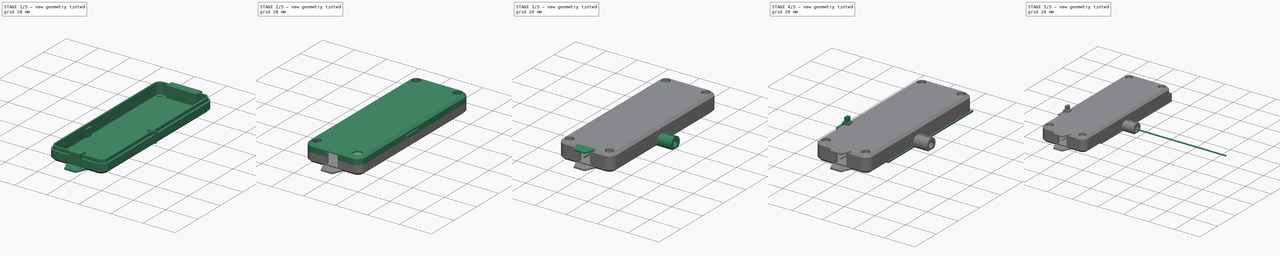
[diagram: build sequence overview — one tinted view per stage of 5, left to right]
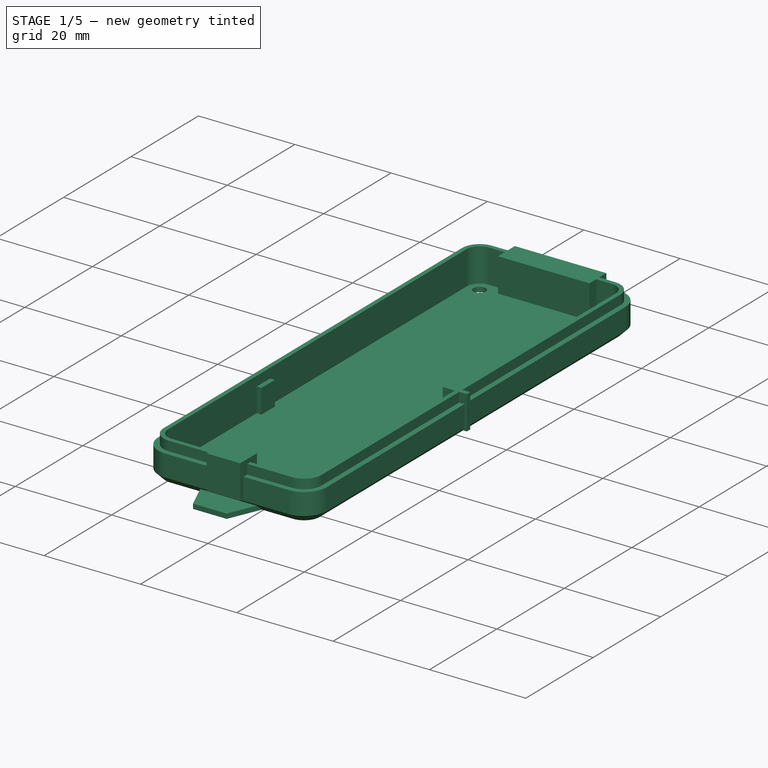
[diagram: stage 1 of 5 — iso view after this stage's code; geometry added in this stage tinted green]
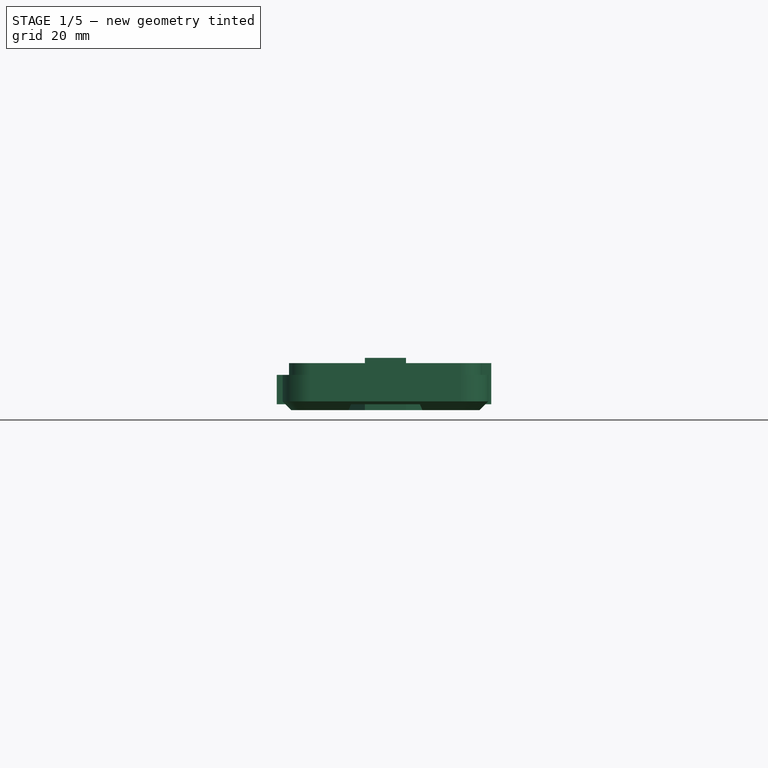
[diagram: stage 1 of 5 — front view after this stage's code; geometry added in this stage tinted green]
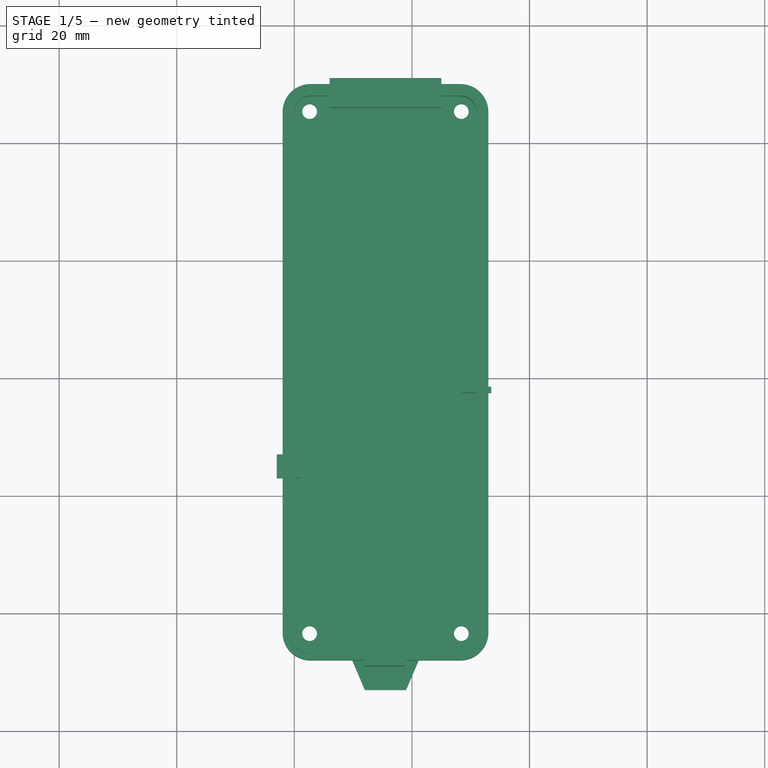
[diagram: stage 1 of 5 — top view after this stage's code; geometry added in this stage tinted green]
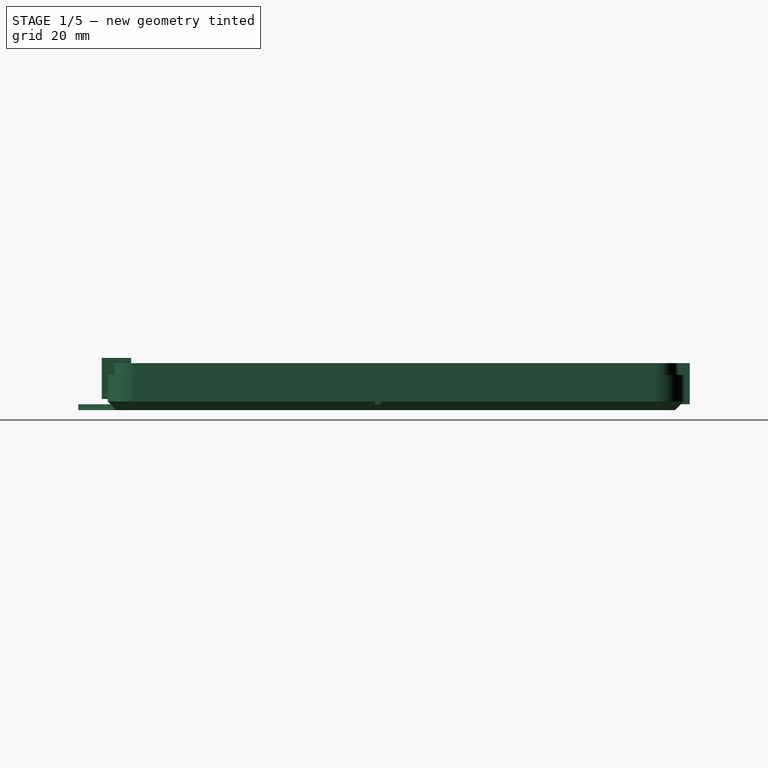
[diagram: stage 1 of 5 — right view after this stage's code; geometry added in this stage tinted green]
FCSTD DOCUMENT  (FreeCAD 0.19R24291 (Git))
Label: servo_board2
License: All rights reserved
LicenseURL: http://en.wikipedia.org/wiki/All_rights_reserved
objects: Sketcher::SketchObject×29, PartDesign::FeatureBase×25, PartDesign::Body×25, Part::Extrusion×22, Part::Compound×13, Part::Cut×9, Part::Box×5, Part::Sweep×4, Part::Cylinder×2, Part::MultiFuse×2, Spreadsheet::Sheet×1, Part::Revolution×1
note: 137 computed .brp shape members not serialized (recipe doc carries the construction recipe); baked Part::Feature solids carry a one-line shape summary decoded from their .brp

FEATURE [Sketcher::SketchObject] Sketch010
  FullyConstrained = true
  Placement = pos=(-3,0,0) rot=(0.57735,-0.57735,-0.57735;2.0944rad)
  sketch-geometry (4):
    g0: LineSegment StartX=-7 StartY=0 StartZ=0 EndX=-3 EndY=0 EndZ=0
    g1: LineSegment StartX=-3 StartY=0 StartZ=0 EndX=-3 EndY=5 EndZ=0
    g2: LineSegment StartX=-3 StartY=5 StartZ=0 EndX=-7 EndY=5 EndZ=0
    g3: LineSegment StartX=-7 StartY=5 StartZ=0 EndX=-7 EndY=0 EndZ=0
  constraints (12):
    c: Coincident(g0,g1)
    c: Coincident(g1,g2)
    c: Coincident(g2,g3)
    c: Coincident(g3,g0)
    c: Horizontal(g0)
    c: Horizontal(g2)
    c: Vertical(g1)
    c: Vertical(g3)
    c: DistanceX(g0) = -3
    c: DistanceY(g1,g1) = 5
    c: DistanceX(g0,g0) = 4
    c: PointOnObject(g0,g-1)
FEATURE [Part::Extrusion] Extrude008  label="led003"
  Base = -> Sketch010
  Dir = (-1,0,0)
  DirMode = 2
  FaceMakerClass = Part::FaceMakerBullseye
  LengthFwd = 0
  LengthRev = 4
  Solid = true
  Symmetric = false
FEATURE [Part::Sweep] Sweep001  label="bottom wall"
  Frenet = false
  Sections = -> [Sketch037]
  Solid = true
  Spine = -> Sketch038
  Transition = 1
FEATURE [Sketcher::SketchObject] Sketch078
  FullyConstrained = false
  expr: Constraints[12] = Spreadsheet.m26_r3
  sketch-geometry (8):
    g0: LineSegment StartX=-2 StartY=70 StartZ=0 EndX=33 EndY=70 EndZ=0
    g1: LineSegment StartX=33 StartY=70 StartZ=0 EndX=33 EndY=-28 EndZ=0
    g2: LineSegment StartX=33 StartY=-28 StartZ=0 EndX=-2 EndY=-28 EndZ=0
    g3: LineSegment StartX=-2 StartY=-28 StartZ=0 EndX=-2 EndY=70 EndZ=0
    g4: Circle CenterX=2.6 CenterY=-23.4 CenterZ=0 NormalX=0 NormalY=0 NormalZ=1 AngleXU=0 Radius=1.25
    g5: Circle CenterX=28.4 CenterY=-23.4 CenterZ=0 NormalX=0 NormalY=0 NormalZ=1 AngleXU=0 Radius=1.25
    g6: Circle CenterX=28.4 CenterY=65.4 CenterZ=0 NormalX=0 NormalY=0 NormalZ=1 AngleXU=0 Radius=1.25
    g7: Circle CenterX=2.6 CenterY=65.4 CenterZ=0 NormalX=0 NormalY=0 NormalZ=1 AngleXU=0 Radius=1.25
  constraints (23):
    c: Coincident(g0,g1)
    c: Coincident(g1,g2)
    c: Coincident(g2,g3)
    c: Coincident(g3,g0)
    c: Horizontal(g0)
    c: Horizontal(g2)
    c: Vertical(g1)
    c: Vertical(g3)
    c: DistanceX(g1) = 33
    c: DistanceY(g1) = -28
    c: DistanceY(g0) = 70
    c: DistanceX(g0) = -2
    c: Radius(g4) = 1.25
    c: DistanceX(g4) = 2.6
    c: DistanceY(g4) = -23.4
    c: Equal(g4,g5) = 1.25
    c: Equal(g4,g7) = 1.25
    c: DistanceX(g6) = 28.4
    c: DistanceY(g6) = 65.4
    c: Horizontal(g7,g6)
    c: Vertical(g6,g5)
    c: Vertical(g7,g4)
    c: Horizontal(g4,g5)
FEATURE [Part::Extrusion] Extrude074  label="bottom panel"
  Base = -> Sketch078
  Dir = (0,0,1)
  DirMode = 2
  FaceMakerClass = Part::FaceMakerBullseye
  LengthFwd = 0
  LengthRev = 1
  Solid = true
  Symmetric = false
FEATURE [Sketcher::SketchObject] Sketch040  label="profile003"
  FullyConstrained = true
  Placement = pos=(0,0,0) rot=(1,0,0;1.5708rad)
  sketch-geometry (8):
    g0: LineSegment StartX=-0.5 StartY=10 StartZ=0 EndX=-2 EndY=8.5 EndZ=0
    g1: LineSegment StartX=-2 StartY=8.5 StartZ=0 EndX=-2 EndY=0.5 EndZ=0
    g2: LineSegment StartX=-2 StartY=0.5 StartZ=0 EndX=-0.5 EndY=-1 EndZ=0
    g3: LineSegment StartX=-0.5 StartY=-1 StartZ=0 EndX=-0.5 EndY=-2 EndZ=0
    g4: LineSegment StartX=-0.5 StartY=-2 StartZ=0 EndX=-5.5 EndY=-2 EndZ=0
    g5: LineSegment StartX=-5.5 StartY=-2 StartZ=0 EndX=-5.5 EndY=11 EndZ=0
    g6: LineSegment StartX=-5.5 StartY=11 StartZ=0 EndX=-0.5 EndY=11 EndZ=0
    g7: LineSegment StartX=-0.5 StartY=11 StartZ=0 EndX=-0.5 EndY=10 EndZ=0
  constraints (24):
    c: Coincident(g0,g1)
    c: Vertical(g1)
    c: Coincident(g1,g2)
    c: Coincident(g2,g3)
    c: Vertical(g3)
    c: Coincident(g3,g4)
    c: Horizontal(g4)
    c: Coincident(g4,g5)
    c: Vertical(g5)
    c: Coincident(g5,g6)
    c: Horizontal(g6)
    c: Coincident(g6,g7)
    c: Coincident(g7,g0)
    c: Vertical(g7)
    c: DistanceY(g7,g7) = 1
    c: DistanceY(g3,g3) = 1
    c: DistanceX(g4,g4) = 5
    c: DistanceX(g0,g0) = 1.5
    c: DistanceY(g0,g0) = 1.5
    c: DistanceY(g2,g1) = 1.5
    c: DistanceX(g1,g2) = 1.5
    c: DistanceX(g0) = -2
    c: DistanceY(g0) = 10
    c: DistanceY(g2) = -1
FEATURE [PartDesign::FeatureBase] Clone020
  BaseFeature = -> Sketch038
  Placement = pos=(0,0,0) rot=(1,0,0;3.14159rad)
FEATURE [PartDesign::Body] Body020  label="path003"
  Group = -> [Clone020]
  Origin = -> Origin020
  Tip = -> Clone020
FEATURE [Part::Sweep] Sweep003  label="bevel"
  Frenet = false
  Sections = -> [Sketch040]
  Solid = true
  Spine = -> Body020
  Transition = 1
FEATURE [PartDesign::FeatureBase] Clone023
  BaseFeature = -> Sweep003
FEATURE [PartDesign::Body] Body023  label="bevel003"
  Group = -> [Clone023]
  Origin = -> Origin023
  Tip = -> Clone023
FEATURE [Part::Compound] Compound009
  Links = -> [Extrude074,Sweep001]
FEATURE [Part::Cut] Cut042
  Base = -> Compound009
  Tool = -> Body023
FEATURE [Sketcher::SketchObject] Sketch081
  FullyConstrained = true
  Placement = pos=(0,-29,0) rot=(-1,0,0;4.71239rad)
  sketch-geometry (4):
    g0: LineSegment StartX=12 StartY=7.9 StartZ=0 EndX=19 EndY=7.9 EndZ=0
    g1: LineSegment StartX=19 StartY=7.9 StartZ=0 EndX=19 EndY=0.9 EndZ=0
    g2: LineSegment StartX=19 StartY=0.9 StartZ=0 EndX=12 EndY=0.9 EndZ=0
    g3: LineSegment StartX=12 StartY=0.9 StartZ=0 EndX=12 EndY=7.9 EndZ=0
  constraints (12):
    c: Coincident(g0,g1)
    c: Coincident(g1,g2)
    c: Coincident(g2,g3)
    c: Coincident(g3,g0)
    c: Horizontal(g0)
    c: Horizontal(g2)
    c: Vertical(g1)
    c: Vertical(g3)
    c: DistanceX(g0,g0) = 7
    c: DistanceY(g1,g1) = 7
    c: DistanceX(g2) = 12
    c: DistanceY(g2) = 0.9
FEATURE [Part::Extrusion] Extrude076  label="switch001"
  Base = -> Sketch081
  Dir = (0,-1,-2e-16)
  DirMode = 2
  FaceMakerClass = Part::FaceMakerBullseye
  LengthFwd = 0
  LengthRev = 5
  Solid = true
  Symmetric = false
FEATURE [Sketcher::SketchObject] Sketch082
  FullyConstrained = true
  Placement = pos=(0,71,0) rot=(0,0.707107,0.707107;3.14159rad)
  sketch-geometry (4):
    g0: LineSegment StartX=-25 StartY=0 StartZ=0 EndX=-6 EndY=0 EndZ=0
    g1: LineSegment StartX=-6 StartY=0 StartZ=0 EndX=-6 EndY=7 EndZ=0
    g2: LineSegment StartX=-6 StartY=7 StartZ=0 EndX=-25 EndY=7 EndZ=0
    g3: LineSegment StartX=-25 StartY=7 StartZ=0 EndX=-25 EndY=0 EndZ=0
  constraints (12):
    c: Coincident(g0,g1)
    c: Coincident(g1,g2)
    c: Coincident(g2,g3)
    c: Coincident(g3,g0)
    c: Horizontal(g0)
    c: Horizontal(g2)
    c: Vertical(g1)
    c: Vertical(g3)
    c: PointOnObject(g0,g-1)
    c: DistanceY(g3,g3) = 7
    c: DistanceX(g0) = -6
    c: DistanceX(g0,g0) = 19
FEATURE [Part::Extrusion] Extrude077
  Base = -> Sketch082
  Dir = (1e-16,1,0)
  DirMode = 2
  FaceMakerClass = Part::FaceMakerBullseye
  LengthFwd = 0
  LengthRev = 5
  Solid = true
  Symmetric = false
FEATURE [Part::Compound] Compound010  label="side cutouts"
  Links = -> [Extrude076,Extrude008,Extrude077]
FEATURE [PartDesign::FeatureBase] Clone024
  BaseFeature = -> Compound010
FEATURE [Sketcher::SketchObject] Sketch085
  FullyConstrained = true
  Placement = pos=(33.5,0,0) rot=(0.57735,0.57735,0.57735;2.0944rad)
  sketch-geometry (4):
    g0: LineSegment StartX=17.5 StartY=7 StartZ=0 EndX=18.5 EndY=7 EndZ=0
    g1: LineSegment StartX=18.5 StartY=7 StartZ=0 EndX=18.5 EndY=0 EndZ=0
    g2: LineSegment StartX=18.5 StartY=0 StartZ=0 EndX=17.5 EndY=0 EndZ=0
    g3: LineSegment StartX=17.5 StartY=0 StartZ=0 EndX=17.5 EndY=7 EndZ=0
  constraints (12):
    c: Coincident(g0,g1)
    c: Coincident(g1,g2)
    c: Coincident(g2,g3)
    c: Coincident(g3,g0)
    c: Horizontal(g0)
    c: Horizontal(g2)
    c: Vertical(g1)
    c: Vertical(g3)
    c: PointOnObject(g1,g-1)
    c: DistanceX(g0,g0) = 1
    c: DistanceX(g2) = 17.5
    c: DistanceY(g3,g3) = 7
FEATURE [Part::Extrusion] Extrude080
  Base = -> Sketch085
  Dir = (1,0,0)
  DirMode = 2
  FaceMakerClass = Part::FaceMakerBullseye
  LengthFwd = 0
  LengthRev = 5
  Solid = true
  Symmetric = false
FEATURE [Part::Compound] Compound012
  Links = -> [Extrude080,Body024]
FEATURE [Sketcher::SketchObject] Sketch086
  FullyConstrained = true
  sketch-geometry (4):
    g0: LineSegment StartX=12 StartY=-33 StartZ=0 EndX=19 EndY=-33 EndZ=0
    g1: LineSegment StartX=19 StartY=-33 StartZ=0 EndX=22 EndY=-26 EndZ=0
    g2: LineSegment StartX=22 StartY=-26 StartZ=0 EndX=9 EndY=-26 EndZ=0
    g3: LineSegment StartX=9 StartY=-26 StartZ=0 EndX=12 EndY=-33 EndZ=0
  constraints (12):
    c: Horizontal(g0)
    c: Coincident(g0,g1)
    c: Coincident(g1,g2)
    c: Horizontal(g2)
    c: Coincident(g2,g3)
    c: Coincident(g3,g0)
    c: DistanceX(g0) = 12
    c: DistanceY(g0) = -33
    c: DistanceX(g0,g0) = 7
    c: DistanceX(g0,g1) = 3
    c: DistanceX(g2,g0) = 3
    c: DistanceY(g2) = -26
FEATURE [Part::Extrusion] Extrude081  label="button protector001"
  Base = -> Sketch086
  Dir = (0,0,1)
  DirMode = 2
  FaceMakerClass = Part::FaceMakerBullseye
  LengthFwd = 0
  LengthRev = 1
  Solid = true
  Symmetric = false
FEATURE [PartDesign::FeatureBase] Clone026
  BaseFeature = -> Extrude081
FEATURE [PartDesign::FeatureBase] Clone027
  BaseFeature = -> Extrude081
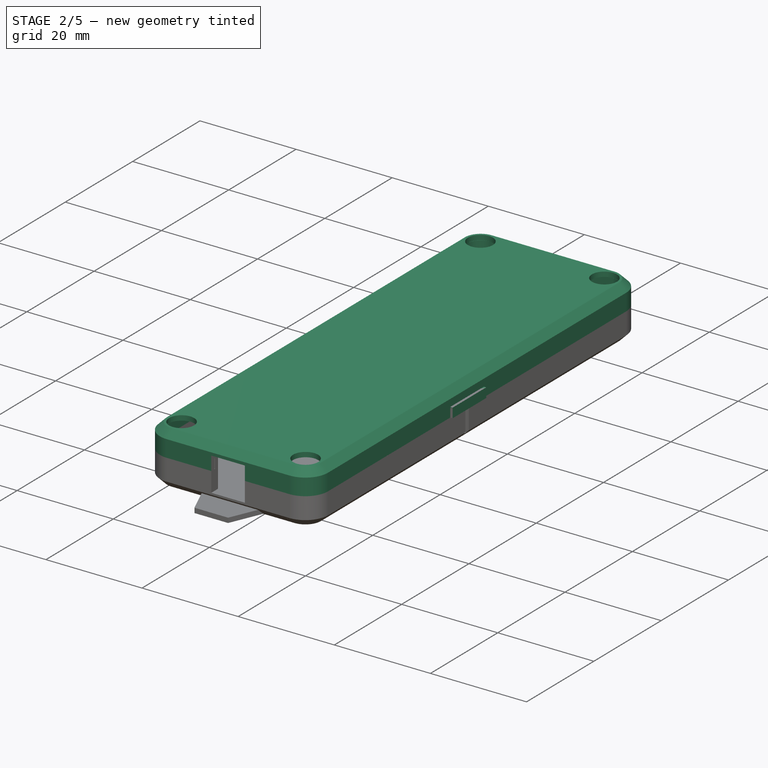
[diagram: stage 2 of 5 — iso view after this stage's code; geometry added in this stage tinted green]
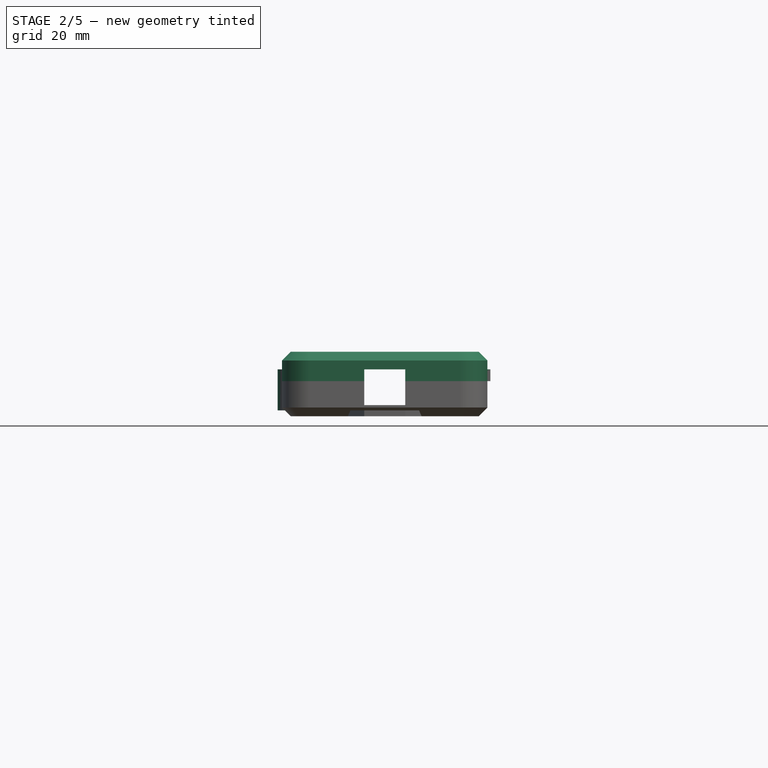
[diagram: stage 2 of 5 — front view after this stage's code; geometry added in this stage tinted green]
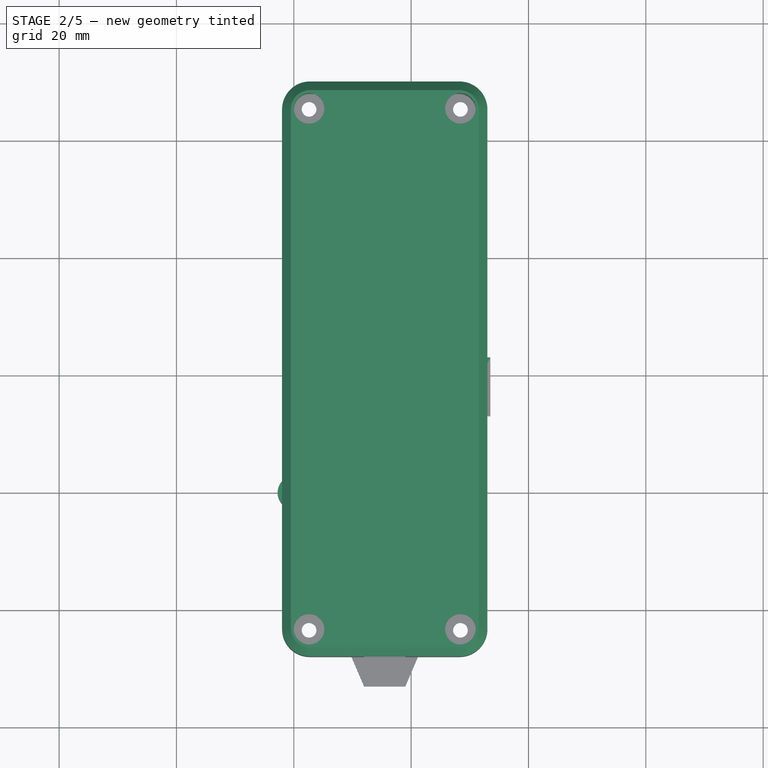
[diagram: stage 2 of 5 — top view after this stage's code; geometry added in this stage tinted green]
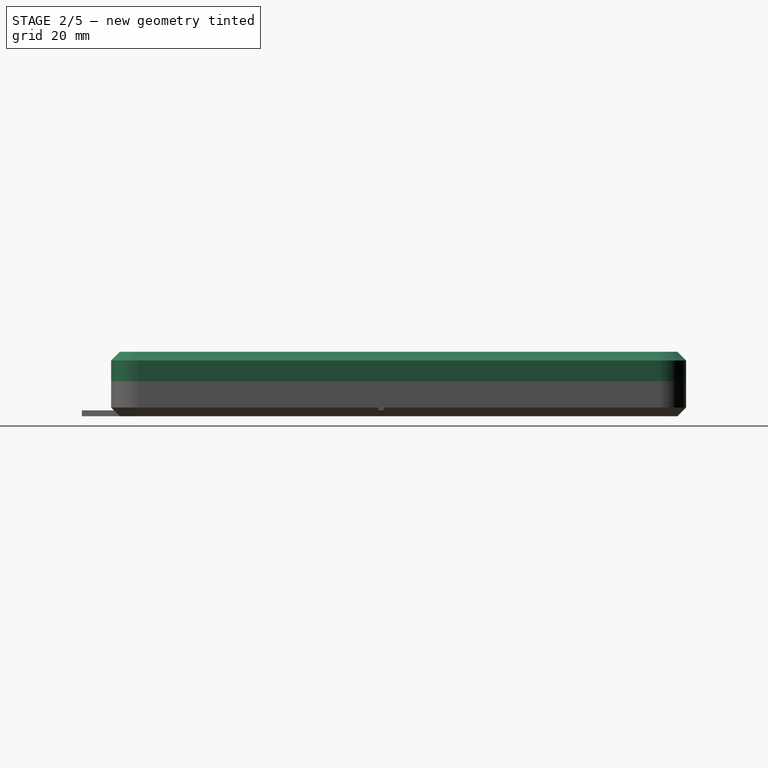
[diagram: stage 2 of 5 — right view after this stage's code; geometry added in this stage tinted green]
FEATURE [Sketcher::SketchObject] Sketch037  label="profile001"
  FullyConstrained = true
  Placement = pos=(0,0,0) rot=(0,0.707107,0.707107;3.14159rad)
  sketch-geometry (6):
    g0: LineSegment StartX=-33 StartY=5 StartZ=0 EndX=-31.9 EndY=5 EndZ=0
    g1: LineSegment StartX=-31.9 StartY=5 StartZ=0 EndX=-31.9 EndY=7 EndZ=0
    g2: LineSegment StartX=-31.9 StartY=7 StartZ=0 EndX=-31 EndY=7 EndZ=0
    g3: LineSegment StartX=-31 StartY=7 StartZ=0 EndX=-31 EndY=0 EndZ=0
    g4: LineSegment StartX=-31 StartY=0 StartZ=0 EndX=-33 EndY=0 EndZ=0
    g5: LineSegment StartX=-33 StartY=0 StartZ=0 EndX=-33 EndY=5 EndZ=0
  constraints (18):
    c: Coincident(g0,g1)
    c: Vertical(g1)
    c: Coincident(g1,g2)
    c: Coincident(g2,g3)
    c: Vertical(g3)
    c: Coincident(g3,g4)
    c: Horizontal(g4)
    c: Coincident(g4,g5)
    c: Coincident(g5,g0)
    c: Vertical(g5)
    c: Horizontal(g0)
    c: Horizontal(g2)
    c: DistanceX(g4,g4) = 2
    c: DistanceX(g4) = -33
    c: DistanceX(g0,g0) = 1.1
    c: DistanceY(g1,g1) = 2
    c: DistanceY(g4) = 0
    c: DistanceY(g3,g3) = 7
FEATURE [Sketcher::SketchObject] Sketch038  label="path001"
  FullyConstrained = true
  Placement = pos=(0,0,0) rot=(1,0,0;3.14159rad)
  expr: Constraints[23] = Spreadsheet.m26_r3 + 1.5
  expr: Constraints[11] = Spreadsheet.m26_r3 + 1.5
  expr: Constraints[8] = Spreadsheet.m26_r3 + 1.5
  expr: Constraints[16] = Spreadsheet.m26_r3 + 1.5
  sketch-geometry (8):
    g0: LineSegment StartX=2.75 StartY=26 StartZ=0 EndX=28.25 EndY=26 EndZ=0
    g1: LineSegment StartX=31 StartY=23.25 StartZ=0 EndX=31 EndY=-65.25 EndZ=0
    g2: LineSegment StartX=28.25 StartY=-68 StartZ=0 EndX=2.75 EndY=-68 EndZ=0
    g3: LineSegment StartX=0 StartY=-65.25 StartZ=0 EndX=0 EndY=23.25 EndZ=0
    g4: ArcOfCircle CenterX=2.75 CenterY=23.25 CenterZ=0 NormalX=0 NormalY=0 NormalZ=1 AngleXU=0 Radius=2.75 StartAngle=1.5708 EndAngle=3.14159
    g5: ArcOfCircle CenterX=28.25 CenterY=-65.25 CenterZ=0 NormalX=0 NormalY=0 NormalZ=1 AngleXU=0 Radius=2.75 StartAngle=4.71239 EndAngle=6.28319
    g6: ArcOfCircle CenterX=28.25 CenterY=23.25 CenterZ=0 NormalX=0 NormalY=0 NormalZ=1 AngleXU=0 Radius=2.75 StartAngle=0 EndAngle=1.5708
    g7: ArcOfCircle CenterX=2.75 CenterY=-65.25 CenterZ=0 NormalX=0 NormalY=0 NormalZ=1 AngleXU=0 Radius=2.75 StartAngle=3.14159 EndAngle=4.71239
  constraints (28):
    c: Horizontal(g0)
    c: Horizontal(g2)
    c: Vertical(g1)
    c: Vertical(g3)
    c: Coincident(g4,g0)
    c: Coincident(g4,g3)
    c: Vertical(g4,g0)
    c: Horizontal(g4,g3)
    c: Radius(g4) = 2.75
    c: Coincident(g5,g1)
    c: Coincident(g5,g2)
    c: Radius(g5) = 2.75
    c: Horizontal(g5,g1)
    c: Vertical(g5,g2)
    c: Coincident(g6,g0)
    c: Coincident(g6,g1)
    c: Radius(g6) = 2.75
    c: Horizontal(g6,g1)
    c: Vertical(g6,g0)
    c: Coincident(g7,g3)
    c: Coincident(g7,g2)
    c: Horizontal(g7,g3)
    c: Vertical(g2,g7)
    c: Radius(g7) = 2.75
    c: DistanceX(g1) = 31
    c: DistanceY(g2) = -68
    c: DistanceX(g3) = 0
    c: DistanceY(g0) = 26
FEATURE [Sketcher::SketchObject] Sketch039
  FullyConstrained = true
  expr: Constraints[3] = Spreadsheet.m26_r3
  expr: Constraints[0] = Spreadsheet.m26_r3 + 1.5
  sketch-geometry (2):
    g0: Circle CenterX=0 CenterY=0 CenterZ=0 NormalX=0 NormalY=0 NormalZ=1 AngleXU=0 Radius=2.75
    g1: Circle CenterX=0 CenterY=0 CenterZ=0 NormalX=0 NormalY=0 NormalZ=1 AngleXU=0 Radius=1.25
  constraints (4):
    c: Radius(g0) = 2.75
    c: Coincident(g0,g-1)
    c: Coincident(g1,g0)
    c: Radius(g1) = 1.25
FEATURE [Part::Extrusion] Extrude038  label="screw hole bottom005"
  Base = -> Sketch039
  Dir = (0,0,1)
  DirMode = 2
  FaceMakerClass = Part::FaceMakerBullseye
  LengthFwd = 7
  LengthRev = 0
  Solid = true
  Symmetric = false
FEATURE [PartDesign::FeatureBase] Clone010
  BaseFeature = -> Extrude038
FEATURE [PartDesign::Body] Body010  label="screw hole bottom"
  Group = -> [Clone010]
  Origin = -> Origin010
  Placement = pos=(2.6,-23.4,0) rot=(0,0,1;0rad)
  Tip = -> Clone010
FEATURE [PartDesign::FeatureBase] Clone011
  BaseFeature = -> Extrude038
FEATURE [PartDesign::Body] Body011  label="screw hole bottom001"
  Group = -> [Clone011]
  Origin = -> Origin011
  Placement = pos=(2.6,65.4,0) rot=(0,0,1;0rad)
  Tip = -> Clone011
FEATURE [PartDesign::FeatureBase] Clone012
  BaseFeature = -> Extrude038
FEATURE [PartDesign::Body] Body012  label="screw hole bottom002"
  Group = -> [Clone012]
  Origin = -> Origin012
  Placement = pos=(28.4,65.4,0) rot=(0,0,1;0rad)
  Tip = -> Clone012
FEATURE [PartDesign::FeatureBase] Clone013
  BaseFeature = -> Extrude038
FEATURE [PartDesign::Body] Body017  label="screw hole top004"
  Group = -> [Clone017]
  Origin = -> Origin017
  Placement = pos=(28.4,-23.4,1) rot=(0,0,1;0rad)
  Tip = -> Clone017
FEATURE [Sketcher::SketchObject] Sketch079  label="profile002"
  FullyConstrained = true
  Placement = pos=(0,0,0) rot=(0,0.707107,0.707107;3.14159rad)
  sketch-geometry (6):
    g0: LineSegment StartX=-31 StartY=9 StartZ=0 EndX=-31 EndY=7 EndZ=0
    g1: LineSegment StartX=-31 StartY=7 StartZ=0 EndX=-32.1 EndY=7 EndZ=0
    g2: LineSegment StartX=-32.1 StartY=7 StartZ=0 EndX=-32.1 EndY=5 EndZ=0
    g3: LineSegment StartX=-32.1 StartY=5 StartZ=0 EndX=-33 EndY=5 EndZ=0
    g4: LineSegment StartX=-33 StartY=5 StartZ=0 EndX=-33 EndY=9 EndZ=0
    g5: LineSegment StartX=-33 StartY=9 StartZ=0 EndX=-31 EndY=9 EndZ=0
  constraints (18):
    c: Vertical(g0)
    c: Coincident(g0,g1)
    c: Horizontal(g1)
    c: Coincident(g1,g2)
    c: Vertical(g2)
    c: Coincident(g2,g3)
    c: Coincident(g3,g4)
    c: Vertical(g4)
    c: Coincident(g4,g5)
    c: Coincident(g5,g0)
    c: Horizontal(g5)
    c: DistanceX(g4) = -33
    c: DistanceX(g5,g5) = 2
    c: DistanceX(g3,g3) = 0.9
    c: DistanceY(g2,g2) = 2
    c: Horizontal(g3)
    c: DistanceY(g3) = 5
    c: DistanceY(g4,g4) = 4
FEATURE [PartDesign::FeatureBase] Clone018
  BaseFeature = -> Sketch038
  Placement = pos=(0,0,0) rot=(1,0,0;3.14159rad)
FEATURE [PartDesign::Body] Body018  label="path002"
  Group = -> [Clone018]
  Origin = -> Origin018
  Tip = -> Clone018
FEATURE [Part::Sweep] Sweep002  label="top wall"
  Frenet = false
  Sections = -> [Sketch079]
  Solid = true
  Spine = -> Body018
  Transition = 1
FEATURE [PartDesign::FeatureBase] Clone021
  BaseFeature = -> Sweep003
FEATURE [PartDesign::Body] Body021  label="bevel001"
  Group = -> [Clone021]
  Origin = -> Origin021
  Tip = -> Clone021
FEATURE [Part::Compound] Compound005
  Links = -> [Body021]
FEATURE [Sketcher::SketchObject] Sketch080
  FullyConstrained = true
  Placement = pos=(0,0,10) rot=(0,0,1;0rad)
  expr: Constraints[12] = Spreadsheet.m26_r1
  sketch-geometry (8):
    g0: LineSegment StartX=-2 StartY=70 StartZ=0 EndX=33 EndY=70 EndZ=0
    g1: LineSegment StartX=33 StartY=70 StartZ=0 EndX=33 EndY=-28 EndZ=0
    g2: LineSegment StartX=33 StartY=-28 StartZ=0 EndX=-2 EndY=-28 EndZ=0
    g3: LineSegment StartX=-2 StartY=-28 StartZ=0 EndX=-2 EndY=70 EndZ=0
    g4: Circle CenterX=2.6 CenterY=-23.4 CenterZ=0 NormalX=0 NormalY=0 NormalZ=1 AngleXU=0 Radius=2.6
    g5: Circle CenterX=28.4 CenterY=-23.4 CenterZ=0 NormalX=0 NormalY=0 NormalZ=1 AngleXU=0 Radius=2.6
    g6: Circle CenterX=2.6 CenterY=65.4 CenterZ=0 NormalX=0 NormalY=0 NormalZ=1 AngleXU=0 Radius=2.6
    g7: Circle CenterX=28.4 CenterY=65.4 CenterZ=0 NormalX=0 NormalY=0 NormalZ=1 AngleXU=0 Radius=2.6
  constraints (24):
    c: Coincident(g0,g1)
    c: Coincident(g1,g2)
    c: Coincident(g2,g3)
    c: Coincident(g3,g0)
    c: Horizontal(g0)
    c: Horizontal(g2)
    c: Vertical(g1)
    c: Vertical(g3)
    c: DistanceX(g1) = 33
    c: DistanceY(g1) = -28
    c: DistanceY(g0) = 70
    c: DistanceX(g0) = -2
    c: Radius(g4) = 2.6
    c: DistanceX(g4) = 2.6
    c: DistanceY(g4) = -23.4
    c: Equal(g4,g5) = 2.6
    c: Equal(g4,g6) = 2.6
    c: Equal(g4,g7) = 2.6
    c: DistanceY(g7) = 65.4
    c: DistanceX(g7) = 28.4
    c: Horizontal(g7,g6)
    c: Vertical(g6,g4)
    c: Horizontal(g5,g4)
    c: Vertical(g5,g7)
FEATURE [Part::Extrusion] Extrude075  label="panel001"
  Base = -> Sketch080
  Dir = (0,0,1)
  DirMode = 2
  FaceMakerClass = Part::FaceMakerBullseye
  LengthFwd = 0
  LengthRev = 1
  Solid = true
  Symmetric = false
FEATURE [Part::Compound] Compound004
  Links = -> [Sweep002,Extrude075]
FEATURE [Part::Cut] Cut040
  Base = -> Compound004
  Tool = -> Compound005
FEATURE [Sketcher::SketchObject] Sketch083
  FullyConstrained = true
  sketch-geometry (16):
    g0: LineSegment StartX=4 StartY=39 StartZ=0 EndX=4 EndY=40 EndZ=0
    g1: LineSegment StartX=4 StartY=40 StartZ=0 EndX=0 EndY=40 EndZ=0
    g2: LineSegment StartX=0 StartY=40 StartZ=0 EndX=0 EndY=39 EndZ=0
    g3: LineSegment StartX=0 StartY=39 StartZ=0 EndX=4 EndY=39 EndZ=0
    g4: LineSegment StartX=29 StartY=39 StartZ=0 EndX=31 EndY=39 EndZ=0
    g5: LineSegment StartX=31 StartY=39 StartZ=0 EndX=31 EndY=40 EndZ=0
    g6: LineSegment StartX=31 StartY=40 StartZ=0 EndX=29 EndY=40 EndZ=0
    g7: LineSegment StartX=29 StartY=40 StartZ=0 EndX=29 EndY=39 EndZ=0
    g8: LineSegment StartX=0 StartY=0 StartZ=0 EndX=10 EndY=0 EndZ=0
    g9: LineSegment StartX=10 StartY=0 StartZ=0 EndX=10 EndY=-1 EndZ=0
    g10: LineSegment StartX=10 StartY=-1 StartZ=0 EndX=0 EndY=-1 EndZ=0
    g11: LineSegment StartX=21 StartY=0 StartZ=0 EndX=31 EndY=0 EndZ=0
    g12: LineSegment StartX=31 StartY=0 StartZ=0 EndX=31 EndY=-1 EndZ=0
    g13: LineSegment StartX=31 StartY=-1 StartZ=0 EndX=21 EndY=-1 EndZ=0
    g14: LineSegment StartX=21 StartY=-1 StartZ=0 EndX=21 EndY=0 EndZ=0
    g15: LineSegment StartX=0 StartY=0 StartZ=0 EndX=0 EndY=-1 EndZ=0
  constraints (48):
    c: Vertical(g0)
    c: Coincident(g0,g1)
    c: Horizontal(g1)
    c: Coincident(g1,g2)
    c: Vertical(g2)
    c: PointOnObject(g3,g-2)
    c: Coincident(g3,g0)
    c: Horizontal(g3)
    c: Horizontal(g4)
    c: Vertical(g5)
    c: Coincident(g5,g6)
    c: Horizontal(g6)
    c: Coincident(g6,g7)
    c: Coincident(g7,g4)
    c: Vertical(g7)
    c: PointOnObject(g8,g-1)
    c: Coincident(g8,g9)
    c: Vertical(g9)
    c: Coincident(g9,g10)
    c: Horizontal(g10)
    c: PointOnObject(g11,g-1)
    c: PointOnObject(g11,g-1)
    c: Vertical(g12)
    c: Coincident(g12,g13)
    c: Horizontal(g13)
    c: Coincident(g13,g14)
    c: Coincident(g14,g11)
    c: Vertical(g14)
    c: DistanceX(g3,g3) = 4
    c: DistanceX(g4,g4) = 2
    c: DistanceX(g4) = 31
    c: DistanceY(g7,g7) = 1
    c: Horizontal(g6,g0)
    c: Horizontal(g0,g4)
    c: DistanceY(g9,g9) = 1
    c: Horizontal(g13,g9)
    c: DistanceX(g8,g8) = 10
    c: DistanceX(g11,g11) = 10
    c: DistanceY(g3) = 39
    c: Coincident(g15,g8)
    c: Coincident(g15,g10)
    c: Vertical(g15)
    c: PointOnObject(g10,g-2)
    c: Horizontal(g8)
    c: Coincident(g11,g12)
    c: Coincident(g4,g5)
    c: Vertical(g11,g4)
    c: Coincident(g2,g3)
FEATURE [Part::Extrusion] Extrude078  label="rivets"
  Base = -> Sketch083
  Dir = (0,0,1)
  DirMode = 2
  FaceMakerClass = Part::FaceMakerBullseye
  LengthFwd = 2.4
  LengthRev = 0
  Solid = true
  Symmetric = false
FEATURE [PartDesign::Body] Body024  label="side cutouts001"
  Group = -> [Clone024]
  Origin = -> Origin024
  Tip = -> Clone024
FEATURE [PartDesign::FeatureBase] Clone025
  BaseFeature = -> Compound010
FEATURE [PartDesign::Body] Body025  label="side cutouts002"
  Group = -> [Clone025]
  Origin = -> Origin025
  Tip = -> Clone025
FEATURE [Part::Cut] Cut044
  Base = -> Cut040
  Tool = -> Body025
FEATURE [Sketcher::SketchObject] Sketch084
  FullyConstrained = false
  Placement = pos=(33.5,0,0) rot=(0.57735,0.57735,0.57735;2.0944rad)
  sketch-geometry (4):
    g0: LineSegment StartX=13 StartY=7 StartZ=0 EndX=23 EndY=7 EndZ=0
    g1: LineSegment StartX=23 StartY=7 StartZ=0 EndX=23 EndY=5 EndZ=0
    g2: LineSegment StartX=23 StartY=5 StartZ=0 EndX=13 EndY=5 EndZ=0
    g3: LineSegment StartX=13 StartY=5 StartZ=0 EndX=13 EndY=7 EndZ=0
  constraints (8):
    c: Coincident(g0,g1)
    c: Coincident(g1,g2)
    c: Coincident(g2,g3)
    c: Coincident(g3,g0)
    c: Horizontal(g0)
    c: Horizontal(g2)
    c: Vertical(g1)
    c: Vertical(g3)
FEATURE [Part::Extrusion] Extrude079
  Base = -> Sketch084
  Dir = (1,-2e-16,2e-16)
  DirMode = 2
  FaceMakerClass = Part::FaceMakerBullseye
  LengthFwd = 0
  LengthRev = 5
  Solid = true
  Symmetric = false
FEATURE [Part::Cut] Cut045
  Base = -> Cut042
  Tool = -> Compound012
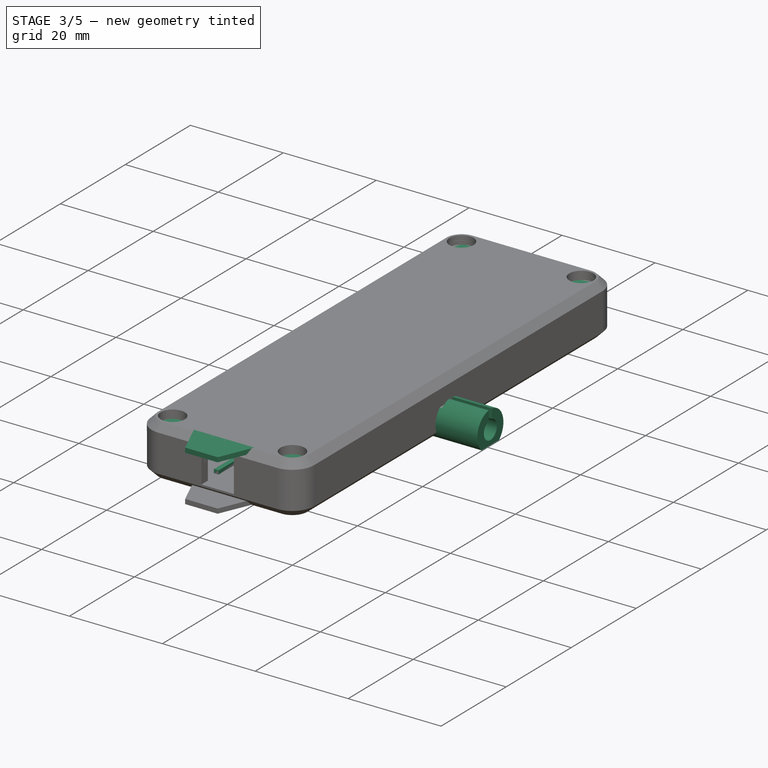
[diagram: stage 3 of 5 — iso view after this stage's code; geometry added in this stage tinted green]
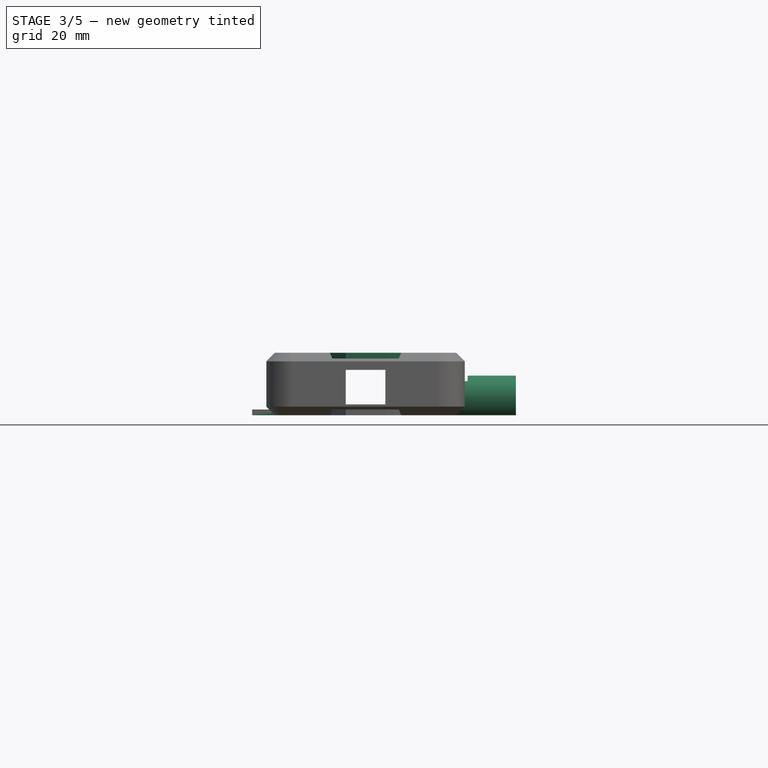
[diagram: stage 3 of 5 — front view after this stage's code; geometry added in this stage tinted green]
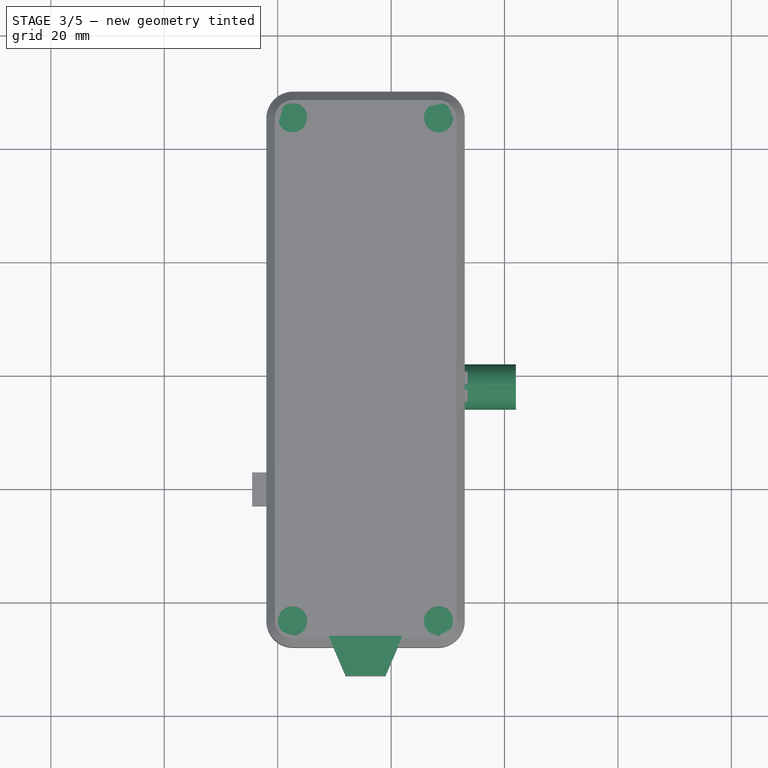
[diagram: stage 3 of 5 — top view after this stage's code; geometry added in this stage tinted green]
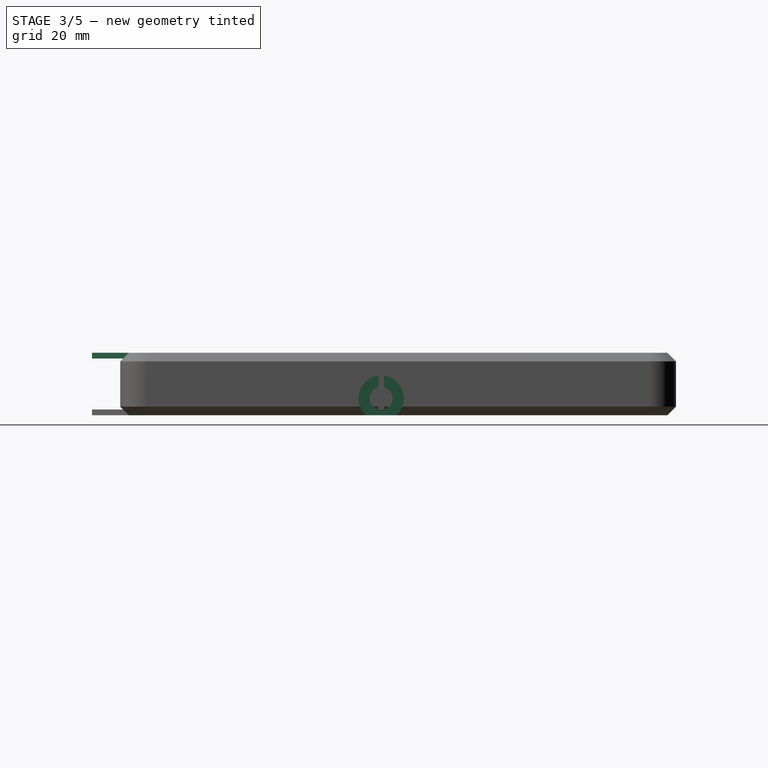
[diagram: stage 3 of 5 — right view after this stage's code; geometry added in this stage tinted green]
FEATURE [Sketcher::SketchObject] Sketch001
  FullyConstrained = true
  Placement = pos=(33,0,0) rot=(0.57735,0.57735,0.57735;2.0944rad)
  expr: Constraints[8] = Spreadsheet.antenna_r + 2
  expr: Constraints[7] = Spreadsheet.antenna_r
  sketch-geometry (4):
    g0: ArcOfCircle CenterX=18 CenterY=2 CenterZ=0 NormalX=0 NormalY=0 NormalZ=1 AngleXU=0 Radius=2 StartAngle=1.82348 EndAngle=7.6013
    g1: ArcOfCircle CenterX=18 CenterY=2 CenterZ=0 NormalX=0 NormalY=0 NormalZ=1 AngleXU=0 Radius=4 StartAngle=1.69612 EndAngle=7.72865
    g2: LineSegment StartX=17.5 StartY=5.96863 StartZ=0 EndX=17.5 EndY=3.93649 EndZ=0
    g3: LineSegment StartX=18.5 StartY=5.96863 StartZ=0 EndX=18.5 EndY=3.93649 EndZ=0
  constraints (13):
    c: Coincident(g1,g0)
    c: Coincident(g2,g1)
    c: Coincident(g2,g0)
    c: Coincident(g3,g1)
    c: Coincident(g3,g0)
    c: Vertical(g3)
    c: Vertical(g2)
    c: Radius(g0) = 2
    c: Radius(g1) = 4
    c: DistanceY(g0) = 2
    c: DistanceX(g0) = 18
    c: DistanceX(g0,g0) = 0.5
    c: DistanceX(g0,g0) = 1
FEATURE [Spreadsheet::Sheet] Spreadsheet
  cells = A1=antenna_r; B1(antenna_r)=2; A3=m2_r1; B3(m2_r1)=0.95; A4=m2_r2; B4(m2_r2)=1.3; A5=m2_r3; B5(m2_r3)=2.3; A6=m26_r1; B6(m26_r1)=2.6; A7=m26_r2; B7(m26_r2)=1.6; A8=m26_r3; B8(m26_r3)=1.25
FEATURE [Part::Extrusion] Extrude001
  Base = -> Sketch001
  Dir = (1,0,0)
  DirMode = 2
  FaceMakerClass = Part::FaceMakerBullseye
  LengthFwd = 9
  LengthRev = 2
  Solid = true
  Symmetric = false
FEATURE [Sketcher::SketchObject] Sketch008
  FullyConstrained = true
  Placement = pos=(42,0,0) rot=(0.57735,0.57735,0.57735;2.0944rad)
  sketch-geometry (4):
    g0: LineSegment StartX=14 StartY=-1 StartZ=0 EndX=22 EndY=-1 EndZ=0
    g1: LineSegment StartX=22 StartY=-1 StartZ=0 EndX=22 EndY=-3 EndZ=0
    g2: LineSegment StartX=22 StartY=-3 StartZ=0 EndX=14 EndY=-3 EndZ=0
    g3: LineSegment StartX=14 StartY=-3 StartZ=0 EndX=14 EndY=-1 EndZ=0
  constraints (12):
    c: Coincident(g0,g1)
    c: Coincident(g1,g2)
    c: Coincident(g2,g3)
    c: Coincident(g3,g0)
    c: Horizontal(g0)
    c: Horizontal(g2)
    c: Vertical(g1)
    c: Vertical(g3)
    c: DistanceX(g0) = 14
    c: DistanceX(g0,g0) = 8
    c: DistanceY(g0) = -1
    c: DistanceY(g3,g3) = 2
FEATURE [Part::Extrusion] Extrude006
  Base = -> Sketch008
  Dir = (1,0,0)
  DirMode = 2
  FaceMakerClass = Part::FaceMakerBullseye
  LengthFwd = 0
  LengthRev = 12
  Solid = true
  Symmetric = false
FEATURE [Sketcher::SketchObject] Sketch075
  FullyConstrained = true
  sketch-geometry (4):
    g0: LineSegment StartX=-4.5 StartY=3 StartZ=0 EndX=4.5 EndY=3 EndZ=0
    g1: LineSegment StartX=4.5 StartY=3 StartZ=0 EndX=4.5 EndY=-3 EndZ=0
    g2: LineSegment StartX=4.5 StartY=-3 StartZ=0 EndX=-4.5 EndY=-3 EndZ=0
    g3: LineSegment StartX=-4.5 StartY=-3 StartZ=0 EndX=-4.5 EndY=3 EndZ=0
  constraints (12):
    c: Coincident(g0,g1)
    c: Coincident(g1,g2)
    c: Coincident(g2,g3)
    c: Coincident(g3,g0)
    c: Horizontal(g0)
    c: Horizontal(g2)
    c: Vertical(g1)
    c: Vertical(g3)
    c: DistanceY(g1,g1) = 6
    c: DistanceX(g0,g0) = 9
    c: DistanceY(g0) = 3
    c: DistanceX(g0) = 4.5
FEATURE [Part::Extrusion] Extrude072
  Base = -> Sketch075
  Dir = (0,0,1)
  DirMode = 2
  FaceMakerClass = Part::FaceMakerBullseye
  LengthFwd = 0
  LengthRev = 1
  Solid = true
  Symmetric = false
FEATURE [PartDesign::Body] Body009  label="cap001"
  Group = -> [Clone009]
  Origin = -> Origin009
  Placement = pos=(15.5,-25.2,4.4) rot=(1,0,0;1.5708rad)
  Tip = -> Clone009
FEATURE [Sketcher::SketchObject] Sketch077
  FullyConstrained = true
  sketch-geometry (8):
    g0: LineSegment StartX=11 StartY=-12.8 StartZ=0 EndX=20 EndY=-12.8 EndZ=0
    g1: LineSegment StartX=20 StartY=-12.8 StartZ=0 EndX=20 EndY=-21.3 EndZ=0
    g2: LineSegment StartX=20 StartY=-21.3 StartZ=0 EndX=21 EndY=-21.3 EndZ=0
    g3: LineSegment StartX=21 StartY=-21.3 StartZ=0 EndX=21 EndY=-11.8 EndZ=0
    g4: LineSegment StartX=21 StartY=-11.8 StartZ=0 EndX=10 EndY=-11.8 EndZ=0
    g5: LineSegment StartX=10 StartY=-11.8 StartZ=0 EndX=10 EndY=-21.3 EndZ=0
    g6: LineSegment StartX=10 StartY=-21.3 StartZ=0 EndX=11 EndY=-21.3 EndZ=0
    g7: LineSegment StartX=11 StartY=-21.3 StartZ=0 EndX=11 EndY=-12.8 EndZ=0
  constraints (24):
    c: Horizontal(g0)
    c: Coincident(g0,g1)
    c: Vertical(g1)
    c: Coincident(g1,g2)
    c: Horizontal(g2)
    c: Coincident(g2,g3)
    c: Vertical(g3)
    c: Coincident(g3,g4)
    c: Horizontal(g4)
    c: Coincident(g4,g5)
    c: Vertical(g5)
    c: Coincident(g5,g6)
    c: Horizontal(g6)
    c: Coincident(g6,g7)
    c: Coincident(g7,g0)
    c: Vertical(g7)
    c: DistanceX(g0,g0) = 9
    c: DistanceX(g6,g6) = 1
    c: DistanceX(g2,g2) = 1
    c: DistanceY(g0,g4) = 1
    c: DistanceY(g1,g1) = 8.5
    c: Horizontal(g6,g1)
    c: DistanceX(g0) = 11
    c: DistanceY(g0) = -12.8
FEATURE [Part::Extrusion] Extrude073  label="align"
  Base = -> Sketch077
  Dir = (0,0,1)
  DirMode = 2
  FaceMakerClass = Part::FaceMakerBullseye
  LengthFwd = 0
  LengthRev = -0.8
  Solid = true
  Symmetric = false
FEATURE [PartDesign::Body] Body013  label="screw hole bottom003"
  Group = -> [Clone013]
  Origin = -> Origin013
  Placement = pos=(28.4,-23.4,0) rot=(0,0,1;0rad)
  Tip = -> Clone013
FEATURE [Sketcher::SketchObject] Sketch033
  FullyConstrained = true
  Placement = pos=(0,0,0) rot=(1,0,0;1.5708rad)
  expr: Constraints[7] = Spreadsheet.m26_r2
  expr: Constraints[8] = Spreadsheet.m26_r1
  sketch-geometry (8):
    g0: LineSegment StartX=1.6 StartY=3 StartZ=0 EndX=1.6 EndY=2 EndZ=0
    g1: LineSegment StartX=2.6 StartY=0 StartZ=0 EndX=4.6 EndY=0 EndZ=0
    g2: LineSegment StartX=4.6 StartY=0 StartZ=0 EndX=4.6 EndY=3 EndZ=0
    g3: LineSegment StartX=4.6 StartY=3 StartZ=0 EndX=1.6 EndY=3 EndZ=0
    g4: LineSegment StartX=1.6 StartY=2 StartZ=0 EndX=0 EndY=2 EndZ=0
    g5: LineSegment StartX=0 StartY=2 StartZ=0 EndX=0 EndY=1.8 EndZ=0
    g6: LineSegment StartX=0 StartY=1.8 StartZ=0 EndX=2.6 EndY=1.8 EndZ=0
    g7: LineSegment StartX=2.6 StartY=1.8 StartZ=0 EndX=2.6 EndY=0 EndZ=0
  constraints (24):
    c: Vertical(g0)
    c: Horizontal(g1)
    c: Coincident(g1,g2)
    c: Vertical(g2)
    c: Coincident(g2,g3)
    c: Coincident(g3,g0)
    c: Horizontal(g3)
    c: DistanceX(g-1,g0) = 1.6
    c: DistanceX(g-1,g1) = 2.6
    c: DistanceX(g1,g1) = 2
    c: DistanceY(g0,g0) = 1
    c: Coincident(g0,g4)
    c: Horizontal(g4)
    c: Coincident(g4,g5)
    c: PointOnObject(g5,g-2)
    c: Vertical(g5)
    c: Coincident(g5,g6)
    c: Horizontal(g6)
    c: Coincident(g7,g6)
    c: Coincident(g7,g1)
    c: Vertical(g7)
    c: DistanceY(g5,g4) = 0.2
    c: DistanceY(g1,g0) = 2
    c: PointOnObject(g1,g-1)
FEATURE [Part::Revolution] Revolve  label="screw hole top005"
  Angle = 360
  Axis = (0,0,1)
  Base = (0,0,0)
  FaceMakerClass = Part::FaceMakerBullseye
  Placement = pos=(0,0,9) rot=(1,0,0;3.14159rad)
  Solid = true
  Source = -> Sketch033
  Symmetric = false
FEATURE [PartDesign::FeatureBase] Clone014
  BaseFeature = -> Revolve
  Placement = pos=(0,0,9) rot=(1,0,0;3.14159rad)
FEATURE [PartDesign::Body] Body014  label="screw hole top001"
  Group = -> [Clone014]
  Origin = -> Origin014
  Placement = pos=(2.6,-23.4,1) rot=(0,0,1;0rad)
  Tip = -> Clone014
FEATURE [PartDesign::FeatureBase] Clone015
  BaseFeature = -> Revolve
  Placement = pos=(0,0,9) rot=(1,0,0;3.14159rad)
FEATURE [PartDesign::Body] Body015  label="screw hole top002"
  Group = -> [Clone015]
  Origin = -> Origin015
  Placement = pos=(2.6,65.4,1) rot=(0,0,1;0rad)
  Tip = -> Clone015
FEATURE [PartDesign::FeatureBase] Clone016
  BaseFeature = -> Revolve
  Placement = pos=(0,0,9) rot=(1,0,0;3.14159rad)
FEATURE [PartDesign::Body] Body016  label="screw hole top003"
  Group = -> [Clone016]
  Origin = -> Origin016
  Placement = pos=(28.4,65.4,1) rot=(0,0,1;0rad)
  Tip = -> Clone016
FEATURE [PartDesign::FeatureBase] Clone017
  BaseFeature = -> Revolve
  Placement = pos=(0,0,9) rot=(1,0,0;3.14159rad)
FEATURE [Part::Compound] Compound006  label="top screw holes"
  Links = -> [Body014,Body015,Body016,Body017]
FEATURE [PartDesign::FeatureBase] Clone022
  BaseFeature = -> Sweep003
FEATURE [PartDesign::Body] Body022  label="bevel002"
  Group = -> [Clone022]
  Origin = -> Origin022
  Tip = -> Clone022
FEATURE [Part::Cut] Cut041
  Base = -> Compound006
  Tool = -> Body022
FEATURE [Part::Compound] Compound008  label="screw hole bottom004"
  Links = -> [Body010,Body011,Body012,Body013]
FEATURE [Part::Compound] Compound002
  Links = -> [Extrude006,Extrude079]
FEATURE [Part::Cut] Cut003  label="antenna001"
  Base = -> Extrude001
  Tool = -> Compound002
FEATURE [PartDesign::Body] Body026  label="button protector002"
  Group = -> [Clone026]
  Origin = -> Origin026
  Placement = pos=(0,0,10) rot=(0,0,1;0rad)
  Tip = -> Clone026
FEATURE [Part::Compound] Compound007  label="top001"
  Links = -> [Cut041,Cut044,Body026]
FEATURE [PartDesign::Body] Body027  label="button protector"
  Group = -> [Clone027]
  Origin = -> Origin027
  Tip = -> Clone027
FEATURE [Part::Compound] Compound011  label="bottom001"
  Links = -> [Compound008,Extrude078,Cut003,Extrude073,Cut045,Body027]
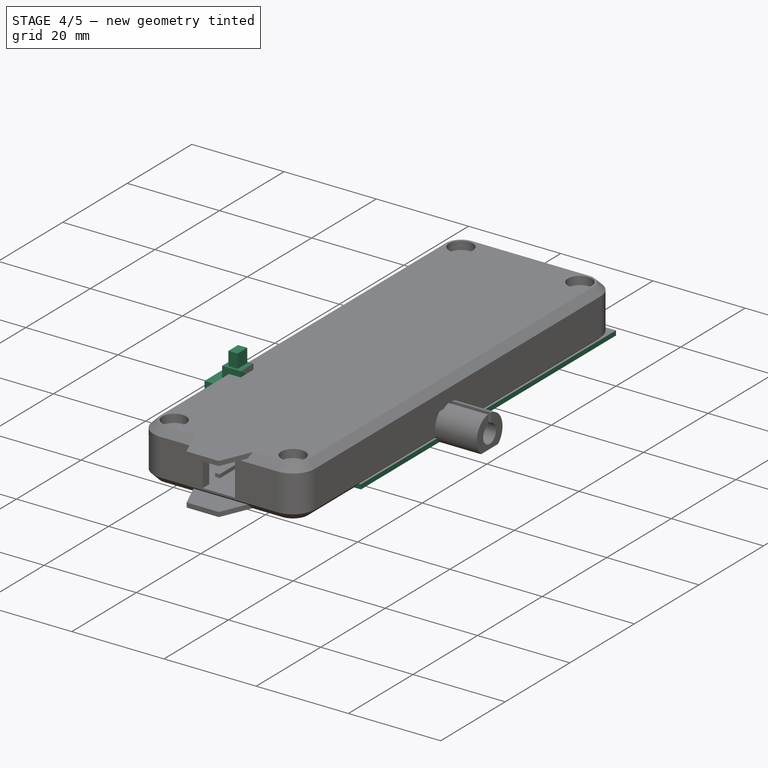
[diagram: stage 4 of 5 — iso view after this stage's code; geometry added in this stage tinted green]
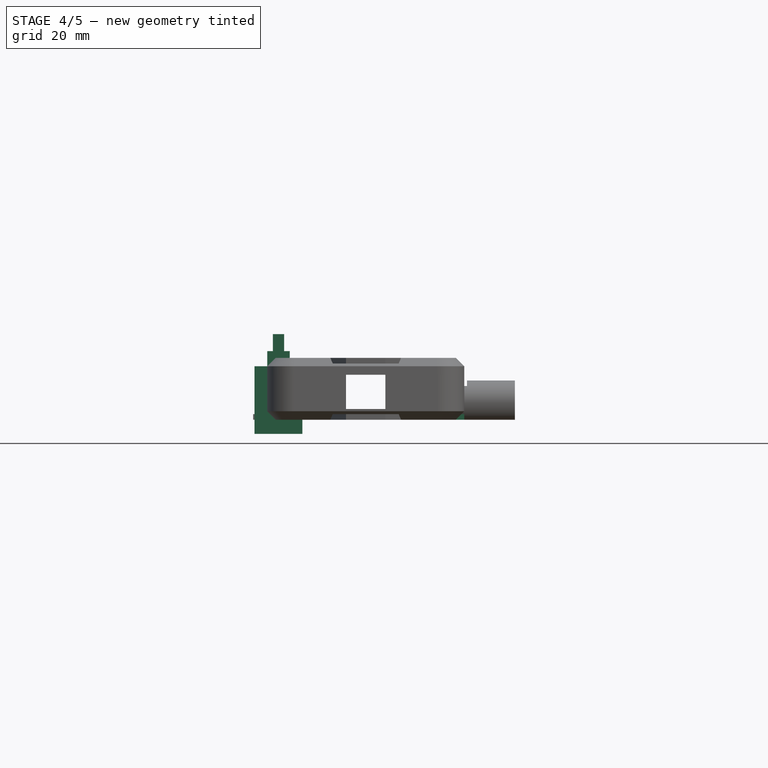
[diagram: stage 4 of 5 — front view after this stage's code; geometry added in this stage tinted green]
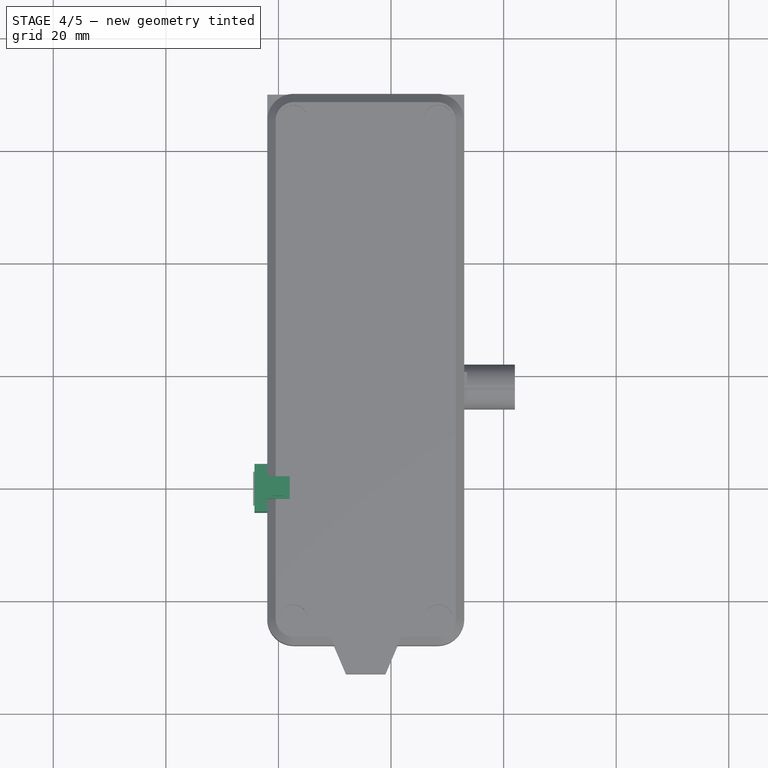
[diagram: stage 4 of 5 — top view after this stage's code; geometry added in this stage tinted green]
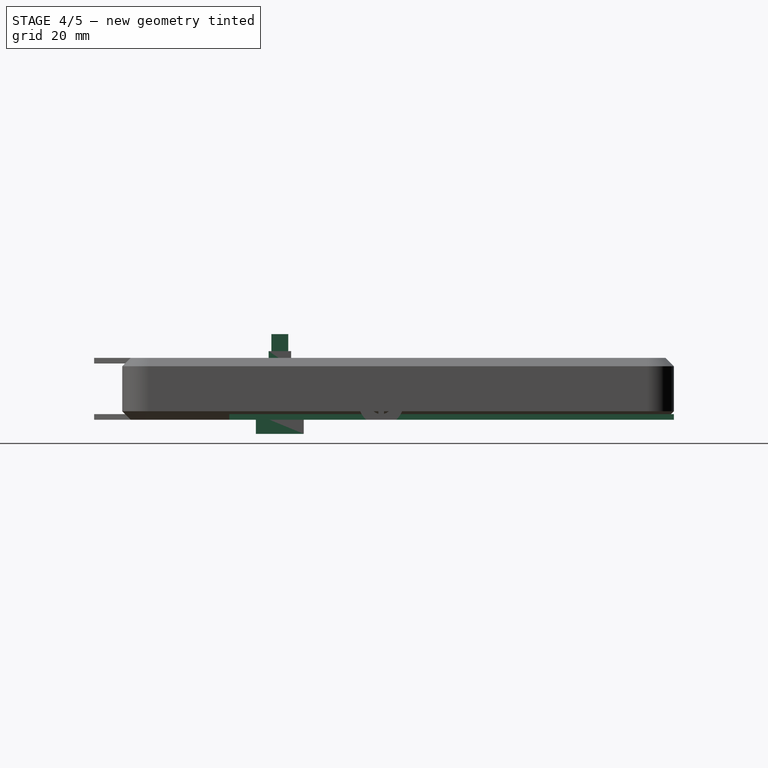
[diagram: stage 4 of 5 — right view after this stage's code; geometry added in this stage tinted green]
FEATURE [Sketcher::SketchObject] Sketch006
  FullyConstrained = true
  Placement = pos=(0,0,-1) rot=(0,0,1;0rad)
  expr: Constraints[12] = Spreadsheet.m2_r1
  sketch-geometry (8):
    g0: LineSegment StartX=-2 StartY=70 StartZ=0 EndX=33 EndY=70 EndZ=0
    g1: LineSegment StartX=33 StartY=70 StartZ=0 EndX=33 EndY=-9 EndZ=0
    g2: LineSegment StartX=33 StartY=-9 StartZ=0 EndX=-2 EndY=-9 EndZ=0
    g3: LineSegment StartX=-2 StartY=-9 StartZ=0 EndX=-2 EndY=70 EndZ=0
    g4: Circle CenterX=2 CenterY=-5 CenterZ=0 NormalX=0 NormalY=0 NormalZ=1 AngleXU=0 Radius=0.95
    g5: Circle CenterX=29 CenterY=-5 CenterZ=0 NormalX=0 NormalY=0 NormalZ=1 AngleXU=0 Radius=0.95
    g6: Circle CenterX=2 CenterY=66 CenterZ=0 NormalX=0 NormalY=0 NormalZ=1 AngleXU=0 Radius=0.95
    g7: Circle CenterX=29 CenterY=66 CenterZ=0 NormalX=0 NormalY=0 NormalZ=1 AngleXU=0 Radius=0.95
  constraints (24):
    c: Coincident(g0,g1)
    c: Coincident(g1,g2)
    c: Coincident(g2,g3)
    c: Coincident(g3,g0)
    c: Horizontal(g0)
    c: Horizontal(g2)
    c: Vertical(g1)
    c: Vertical(g3)
    c: DistanceX(g0) = -2
    c: DistanceY(g0) = 70
    c: DistanceX(g1) = 33
    c: DistanceY(g1) = -9
    c: Radius(g4) = 0.95
    c: DistanceX(g4) = 2
    c: DistanceY(g4) = -5
    c: Equal(g4,g5) = 1.2
    c: Equal(g4,g6) = 1.2
    c: Equal(g4,g7) = 1.2
    c: Horizontal(g6,g7)
    c: Vertical(g7,g5)
    c: Horizontal(g5,g4)
    c: Vertical(g4,g6)
    c: DistanceY(g6) = 66
    c: DistanceX(g5) = 29
FEATURE [Part::Extrusion] Extrude004
  Base = -> Sketch006
  Dir = (0,0,1)
  DirMode = 2
  FaceMakerClass = Part::FaceMakerBullseye
  LengthFwd = 1
  LengthRev = 0
  Solid = true
  Symmetric = false
FEATURE [PartDesign::FeatureBase] Clone007
  BaseFeature = -> Extrude008
FEATURE [PartDesign::Body] Body007  label="led005"
  BaseFeature = -> Extrude008
  Group = -> [Clone007]
  Origin = -> Origin007
  Tip = -> Clone007
FEATURE [Part::Cut] Cut004
  Base = -> Extrude004
  Tool = -> Body007
FEATURE [Part::Box] Box074  label="Cube"
  AttacherType = Attacher::AttachEngine3D
  Height = 8.5
  Length = 8.5
  Placement = pos=(-4.25,-4.25,0) rot=(0,0,1;0rad)
  Width = 8.5
FEATURE [Part::Box] Box075  label="plunger"
  AttacherType = Attacher::AttachEngine3D
  Height = 5.5
  Length = 4
  Placement = pos=(-2,-2,5.7) rot=(0,0,1;0rad)
  Width = 4
FEATURE [Part::Box] Box076  label="pins"
  AttacherType = Attacher::AttachEngine3D
  Height = 3.5
  Length = 8.5
  Placement = pos=(-4.25,-4.25,-3.5) rot=(0,0,1;0rad)
  Width = 8.5
FEATURE [Part::Box] Box078  label="plunger001"
  AttacherType = Attacher::AttachEngine3D
  Height = 3
  Length = 2
  Placement = pos=(-1,-1.5,11.2) rot=(0,0,1;0rad)
  Width = 3
FEATURE [Part::MultiFuse] Fusion024  label="switch master"
  Shapes = -> [Box074,Box075,Box076,Box078]
FEATURE [PartDesign::FeatureBase] Clone008
  BaseFeature = -> Fusion024
FEATURE [PartDesign::Body] Body008  label="switch"
  Group = -> [Clone008]
  Origin = -> Origin008
  Placement = pos=(15.5,-13,4.4) rot=(1,0,0;1.5708rad)
  Tip = -> Clone008
FEATURE [Sketcher::SketchObject] Sketch027  label="power icon"
  FullyConstrained = true
  Placement = pos=(0,0,20) rot=(0,0,1;0rad)
  sketch-geometry (9):
    g0: Circle CenterX=0 CenterY=0 CenterZ=0 NormalX=0 NormalY=0 NormalZ=1 AngleXU=0 Radius=1.75
    g1: ArcOfCircle CenterX=0 CenterY=0 CenterZ=0 NormalX=0 NormalY=0 NormalZ=1 AngleXU=0 Radius=2.5 StartAngle=5.63968 EndAngle=6.92669
    g2: ArcOfCircle CenterX=0 CenterY=0 CenterZ=0 NormalX=0 NormalY=0 NormalZ=1 AngleXU=0 Radius=3 StartAngle=5.63968 EndAngle=6.92669
    g3: ArcOfCircle CenterX=0 CenterY=0 CenterZ=0 NormalX=0 NormalY=0 NormalZ=1 AngleXU=0 Radius=2.5 StartAngle=2.49809 EndAngle=3.78509
    g4: ArcOfCircle CenterX=0 CenterY=0 CenterZ=0 NormalX=0 NormalY=0 NormalZ=1 AngleXU=0 Radius=3 StartAngle=2.49809 EndAngle=3.78509
    g5: LineSegment StartX=-2.4 StartY=1.8 StartZ=0 EndX=-2 EndY=1.5 EndZ=0
    g6: LineSegment StartX=-2 StartY=-1.5 StartZ=0 EndX=-2.4 EndY=-1.8 EndZ=0
    g7: LineSegment StartX=2 StartY=-1.5 StartZ=0 EndX=2.4 EndY=-1.8 EndZ=0
    g8: LineSegment StartX=2 StartY=1.5 StartZ=0 EndX=2.4 EndY=1.8 EndZ=0
  constraints (26):
    c: Radius(g0) = 1.75
    c: Coincident(g1,g0)
    c: Coincident(g2,g0)
    c: Coincident(g3,g0)
    c: Coincident(g4,g0)
    c: Radius(g4) = 3
    c: Coincident(g0,g-1)
    c: Radius(g3) = 2.5
    c: Radius(g2) = 3
    c: Radius(g1) = 2.5
    c: Coincident(g5,g4)
    c: Coincident(g5,g3)
    c: Coincident(g6,g3)
    c: Coincident(g6,g4)
    c: Coincident(g7,g1)
    c: Coincident(g7,g2)
    c: Coincident(g8,g1)
    c: Coincident(g8,g2)
    c: Angle(g8,g1,g1) = 1.5708
    c: Angle(g3,g5,g3) = 1.5708
    c: Angle(g6,g3,g3) = 1.5708
    c: Angle(g7,g1,g1) = 1.5708
    c: Horizontal(g3,g1)
    c: Horizontal(g1,g3)
    c: DistanceY(g3) = -1.5
    c: DistanceY(g3) = 1.5
FEATURE [Part::Extrusion] Extrude036  label="brake icon001"
  Base = -> Sketch027
  Dir = (0,0,1)
  DirMode = 2
  FaceMakerClass = Part::FaceMakerBullseye
  LengthFwd = 0.5
  LengthRev = 0
  Placement = pos=(0,0,-13) rot=(0,0,1;3.14159rad)
  Solid = true
  Symmetric = false
FEATURE [Sketcher::SketchObject] Sketch074
  FullyConstrained = true
  sketch-geometry (4):
    g0: LineSegment StartX=-3 StartY=3 StartZ=0 EndX=3 EndY=3 EndZ=0
    g1: LineSegment StartX=3 StartY=3 StartZ=0 EndX=3 EndY=-3 EndZ=0
    g2: LineSegment StartX=3 StartY=-3 StartZ=0 EndX=-3 EndY=-3 EndZ=0
    g3: LineSegment StartX=-3 StartY=-3 StartZ=0 EndX=-3 EndY=3 EndZ=0
  constraints (12):
    c: Coincident(g0,g1)
    c: Coincident(g1,g2)
    c: Coincident(g2,g3)
    c: Coincident(g3,g0)
    c: Horizontal(g0)
    c: Horizontal(g2)
    c: Vertical(g1)
    c: Vertical(g3)
    c: DistanceY(g1,g1) = 6
    c: DistanceX(g0,g0) = 6
    c: DistanceY(g0) = 3
    c: DistanceX(g0) = 3
FEATURE [Part::Extrusion] Extrude071
  Base = -> Sketch074
  Dir = (0,0,1)
  DirMode = 2
  FaceMakerClass = Part::FaceMakerBullseye
  LengthFwd = 7
  LengthRev = 0
  Solid = true
  Symmetric = false
FEATURE [Part::MultiFuse] Fusion036
  Shapes = -> [Extrude071,Extrude072]
FEATURE [Sketcher::SketchObject] Sketch076
  FullyConstrained = true
  Placement = pos=(0,0,-2) rot=(1,0,0;3.14159rad)
  sketch-geometry (4):
    g0: LineSegment StartX=-1.15 StartY=1.65 StartZ=0 EndX=1.15 EndY=1.65 EndZ=0
    g1: LineSegment StartX=1.15 StartY=1.65 StartZ=0 EndX=1.15 EndY=-1.65 EndZ=0
    g2: LineSegment StartX=1.15 StartY=-1.65 StartZ=0 EndX=-1.15 EndY=-1.65 EndZ=0
    g3: LineSegment StartX=-1.15 StartY=-1.65 StartZ=0 EndX=-1.15 EndY=1.65 EndZ=0
  constraints (12):
    c: Coincident(g0,g1)
    c: Coincident(g1,g2)
    c: Coincident(g2,g3)
    c: Coincident(g3,g0)
    c: Horizontal(g0)
    c: Horizontal(g2)
    c: Vertical(g1)
    c: Vertical(g3)
    c: DistanceX(g2,g0) = 2.3
    c: DistanceY(g2,g0) = 3.3
    c: DistanceX(g0,g-1) = -1.15
    c: DistanceY(g0,g-1) = -1.65
FEATURE [Part::Extrusion] Extrude070
  Base = -> Sketch076
  Dir = (0,-1e-16,-1)
  DirMode = 2
  FaceMakerClass = Part::FaceMakerBullseye
  LengthFwd = 0
  LengthRev = 7
  Solid = true
  Symmetric = false
FEATURE [Part::Cut] Cut039  label="cap master001"
  Base = -> Fusion036
  Tool = -> Extrude070
FEATURE [Part::Compound] Compound003  label="cap"
  Links = -> [Cut039,Extrude036]
FEATURE [PartDesign::FeatureBase] Clone009
  BaseFeature = -> Compound003
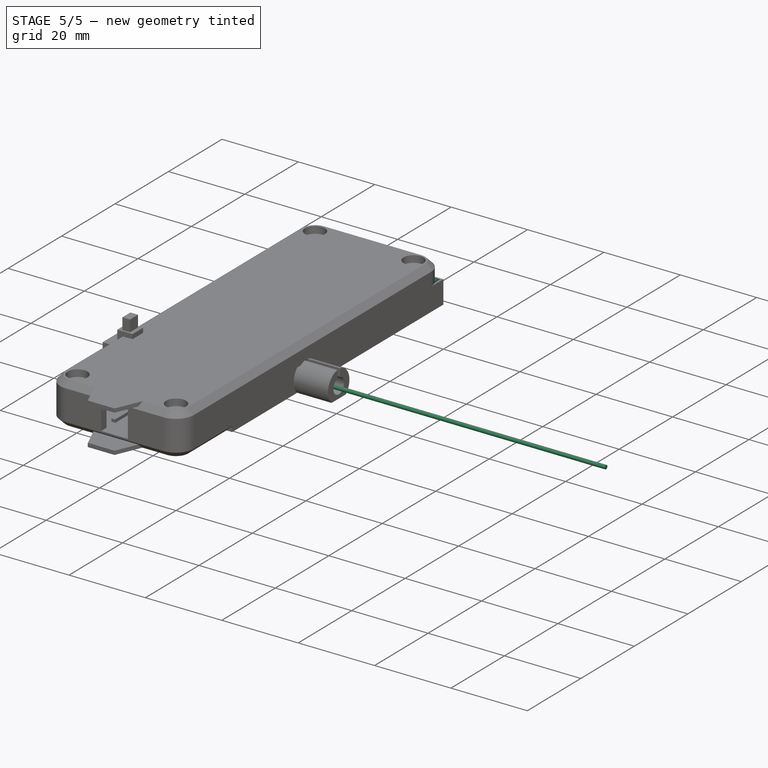
[diagram: stage 5 of 5 — iso view after this stage's code; geometry added in this stage tinted green]
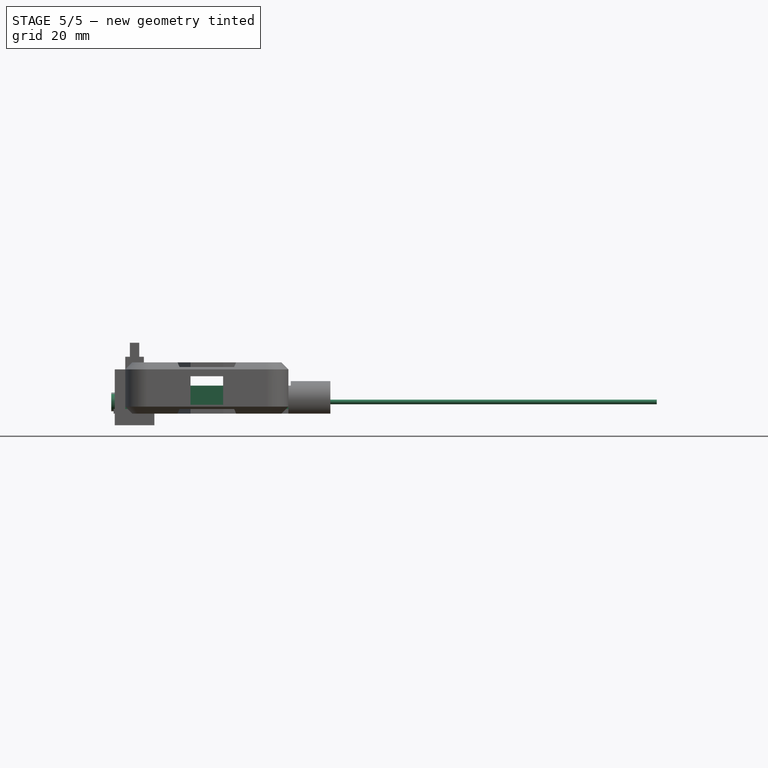
[diagram: stage 5 of 5 — front view after this stage's code; geometry added in this stage tinted green]
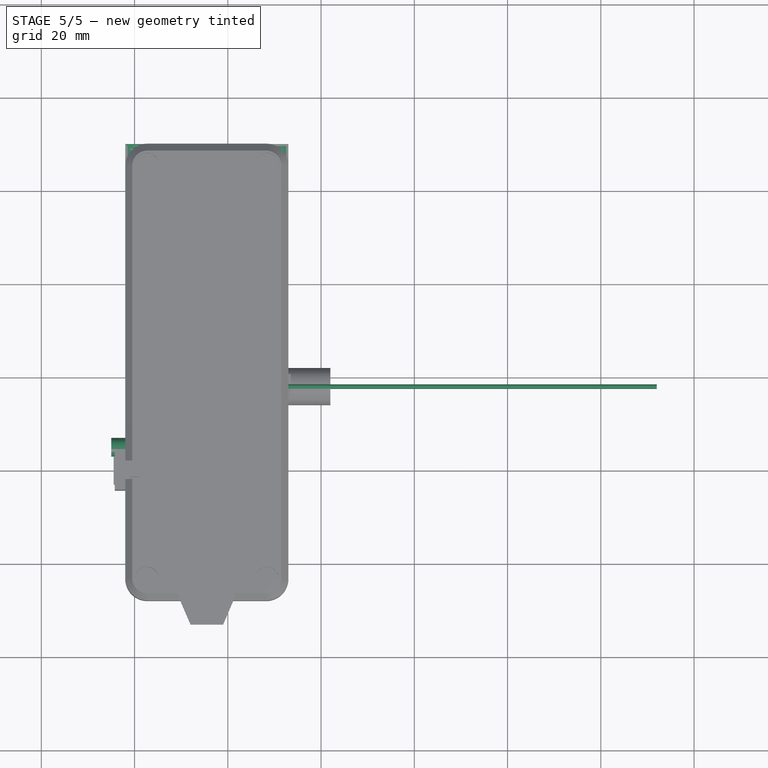
[diagram: stage 5 of 5 — top view after this stage's code; geometry added in this stage tinted green]
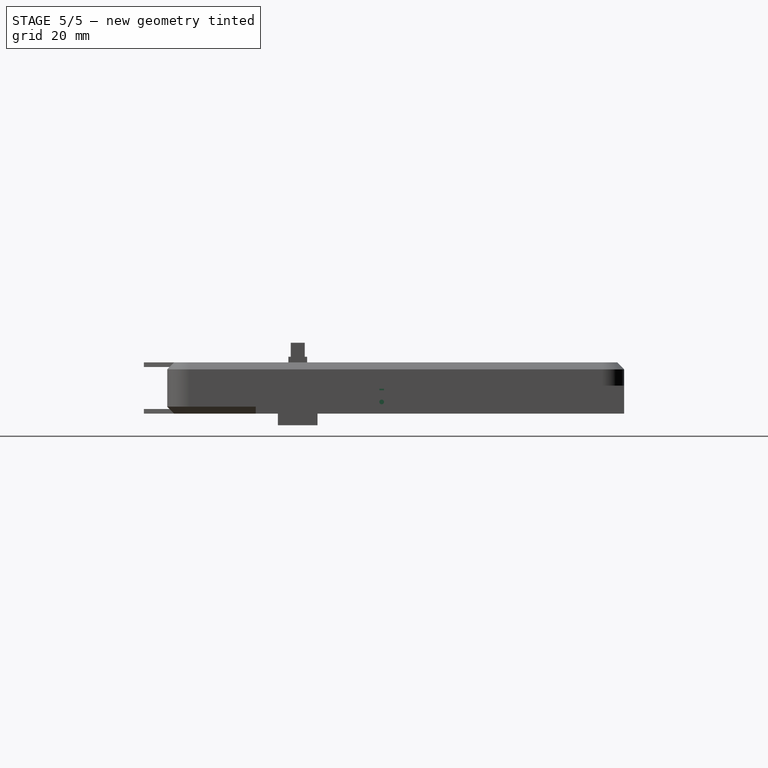
[diagram: stage 5 of 5 — right view after this stage's code; geometry added in this stage tinted green]
FEATURE [Part::Box] Box  label="board"
  AttacherType = Attacher::AttachEngine3D
  Height = 1
  Length = 31
  Width = 39
FEATURE [Sketcher::SketchObject] Sketch
  FullyConstrained = true
  sketch-geometry (16):
    g0: LineSegment StartX=4 StartY=39 StartZ=0 EndX=4 EndY=40 EndZ=0
    g1: LineSegment StartX=4 StartY=40 StartZ=0 EndX=0 EndY=40 EndZ=0
    g2: LineSegment StartX=0 StartY=40 StartZ=0 EndX=0 EndY=39 EndZ=0
    g3: LineSegment StartX=0 StartY=39 StartZ=0 EndX=4 EndY=39 EndZ=0
    g4: LineSegment StartX=29 StartY=39 StartZ=0 EndX=31 EndY=39 EndZ=0
    g5: LineSegment StartX=31 StartY=39 StartZ=0 EndX=31 EndY=40 EndZ=0
    g6: LineSegment StartX=31 StartY=40 StartZ=0 EndX=29 EndY=40 EndZ=0
    g7: LineSegment StartX=29 StartY=40 StartZ=0 EndX=29 EndY=39 EndZ=0
    g8: LineSegment StartX=0 StartY=0 StartZ=0 EndX=10 EndY=0 EndZ=0
    g9: LineSegment StartX=10 StartY=0 StartZ=0 EndX=10 EndY=-1 EndZ=0
    g10: LineSegment StartX=10 StartY=-1 StartZ=0 EndX=0 EndY=-1 EndZ=0
    g11: LineSegment StartX=21 StartY=0 StartZ=0 EndX=31 EndY=0 EndZ=0
    g12: LineSegment StartX=31 StartY=0 StartZ=0 EndX=31 EndY=-1 EndZ=0
    g13: LineSegment StartX=31 StartY=-1 StartZ=0 EndX=21 EndY=-1 EndZ=0
    g14: LineSegment StartX=21 StartY=-1 StartZ=0 EndX=21 EndY=0 EndZ=0
    g15: LineSegment StartX=0 StartY=0 StartZ=0 EndX=0 EndY=-1 EndZ=0
  constraints (48):
    c: Vertical(g0)
    c: Coincident(g0,g1)
    c: Horizontal(g1)
    c: Coincident(g1,g2)
    c: Vertical(g2)
    c: PointOnObject(g3,g-2)
    c: Coincident(g3,g0)
    c: Horizontal(g3)
    c: Horizontal(g4)
    c: Vertical(g5)
    c: Coincident(g5,g6)
    c: Horizontal(g6)
    c: Coincident(g6,g7)
    c: Coincident(g7,g4)
    c: Vertical(g7)
    c: PointOnObject(g8,g-1)
    c: Coincident(g8,g9)
    c: Vertical(g9)
    c: Coincident(g9,g10)
    c: Horizontal(g10)
    c: PointOnObject(g11,g-1)
    c: PointOnObject(g11,g-1)
    c: Vertical(g12)
    c: Coincident(g12,g13)
    c: Horizontal(g13)
    c: Coincident(g13,g14)
    c: Coincident(g14,g11)
    c: Vertical(g14)
    c: DistanceX(g3,g3) = 4
    c: DistanceX(g4,g4) = 2
    c: DistanceX(g4) = 31
    c: DistanceY(g7,g7) = 1
    c: Horizontal(g6,g0)
    c: Horizontal(g0,g4)
    c: DistanceY(g9,g9) = 1
    c: Horizontal(g13,g9)
    c: DistanceX(g8,g8) = 10
    c: DistanceX(g11,g11) = 10
    c: DistanceY(g3) = 39
    c: Coincident(g15,g8)
    c: Coincident(g15,g10)
    c: Vertical(g15)
    c: PointOnObject(g10,g-2)
    c: Horizontal(g8)
    c: Coincident(g11,g12)
    c: Coincident(g4,g5)
    c: Vertical(g11,g4)
    c: Coincident(g2,g3)
FEATURE [Part::Extrusion] Extrude
  Base = -> Sketch
  Dir = (0,0,1)
  DirMode = 2
  FaceMakerClass = Part::FaceMakerBullseye
  LengthFwd = 2.4
  LengthRev = 0
  Solid = true
  Symmetric = false
FEATURE [Part::Cylinder] Cylinder  label="antenna"
  Angle = 360
  AttacherType = Attacher::AttachEngine3D
  Height = 81
  Placement = pos=(31,18,1.5) rot=(0,1,0;1.5708rad)
  Radius = 0.5
FEATURE [Part::Cylinder] Cylinder001  label="led"
  Angle = 360
  AttacherType = Attacher::AttachEngine3D
  Height = 5
  Placement = pos=(0,5,1.5) rot=(0,-1,0;1.5708rad)
  Radius = 2
FEATURE [Sketcher::SketchObject] Sketch002  label="profile"
  FullyConstrained = true
  Placement = pos=(16,0,0) rot=(0.57735,0.57735,0.57735;2.0944rad)
  sketch-geometry (6):
    g0: LineSegment StartX=-7 StartY=0 StartZ=0 EndX=-7 EndY=4 EndZ=0
    g1: LineSegment StartX=-7 StartY=4 StartZ=0 EndX=-8.5 EndY=4 EndZ=0
    g2: LineSegment StartX=-8.5 StartY=4 StartZ=0 EndX=-8.5 EndY=5 EndZ=0
    g3: LineSegment StartX=-8.5 StartY=5 StartZ=0 EndX=-9 EndY=5 EndZ=0
    g4: LineSegment StartX=-9 StartY=5 StartZ=0 EndX=-9 EndY=0 EndZ=0
    g5: LineSegment StartX=-9 StartY=0 StartZ=0 EndX=-7 EndY=0 EndZ=0
  constraints (18):
    c: PointOnObject(g0,g-1)
    c: Vertical(g0)
    c: Coincident(g0,g1)
    c: Horizontal(g1)
    c: Coincident(g1,g2)
    c: Vertical(g2)
    c: Coincident(g2,g3)
    c: Horizontal(g3)
    c: Coincident(g3,g4)
    c: PointOnObject(g4,g-1)
    c: Vertical(g4)
    c: Coincident(g4,g5)
    c: Coincident(g5,g0)
    c: DistanceX(g5,g5) = 2
    c: DistanceY(g0,g0) = 4
    c: DistanceY(g4,g4) = 5
    c: DistanceX(g3,g3) = 0.5
    c: DistanceX(g0) = -7
FEATURE [Sketcher::SketchObject] Sketch003  label="path"
  FullyConstrained = true
  sketch-geometry (5):
    g0: LineSegment StartX=0 StartY=-7 StartZ=0 EndX=31 EndY=-7 EndZ=0
    g1: LineSegment StartX=31 StartY=-7 StartZ=0 EndX=31 EndY=68 EndZ=0
    g2: LineSegment StartX=0 StartY=-7 StartZ=0 EndX=0 EndY=68 EndZ=0
    g3: LineSegment StartX=0 StartY=68 StartZ=0 EndX=5 EndY=68 EndZ=0
    g4: LineSegment StartX=31 StartY=68 StartZ=0 EndX=21 EndY=68 EndZ=0
  constraints (16):
    c: Horizontal(g0)
    c: Coincident(g0,g1)
    c: Vertical(g1)
    c: Coincident(g0,g2)
    c: Vertical(g2)
    c: Horizontal(g2,g1)
    c: Coincident(g3,g2)
    c: Horizontal(g3)
    c: Coincident(g4,g1)
    c: Horizontal(g4)
    c: DistanceX(g4,g4) = 10
    c: DistanceX(g3,g3) = 5
    c: PointOnObject(g2,g-2)
    c: DistanceY(g2) = 68
    c: DistanceX(g1) = 31
    c: DistanceY(g0) = -7
FEATURE [Part::Sweep] Sweep
  Frenet = false
  Sections = -> [Sketch002]
  Solid = true
  Spine = -> Sketch003
  Transition = 1
FEATURE [Sketcher::SketchObject] Sketch004
  FullyConstrained = true
  expr: Constraints[3] = Spreadsheet.m2_r1 + 2
  expr: Constraints[2] = Spreadsheet.m2_r1
  sketch-geometry (2):
    g0: Circle CenterX=0 CenterY=0 CenterZ=0 NormalX=0 NormalY=0 NormalZ=1 AngleXU=0 Radius=0.95
    g1: Circle CenterX=0 CenterY=0 CenterZ=0 NormalX=0 NormalY=0 NormalZ=1 AngleXU=0 Radius=2.95
  constraints (4):
    c: Coincident(g0,g-1)
    c: Coincident(g1,g0)
    c: Radius(g0) = 0.95
    c: Radius(g1) = 2.95
FEATURE [Part::Extrusion] Extrude002
  Base = -> Sketch004
  Dir = (0,0,1)
  DirMode = 2
  FaceMakerClass = Part::FaceMakerBullseye
  LengthFwd = 4
  LengthRev = 0
  Solid = true
  Symmetric = false
FEATURE [PartDesign::FeatureBase] Clone
  BaseFeature = -> Extrude002
FEATURE [PartDesign::Body] Body
  BaseFeature = -> Extrude002
  Group = -> [Clone]
  Origin = -> Origin
  Placement = pos=(2,66,0) rot=(0,0,1;0rad)
  Tip = -> Clone
FEATURE [PartDesign::FeatureBase] Clone001
  BaseFeature = -> Extrude002
FEATURE [PartDesign::Body] Body001
  BaseFeature = -> Extrude002
  Group = -> [Clone001]
  Origin = -> Origin001
  Placement = pos=(29,66,0) rot=(0,0,1;0rad)
  Tip = -> Clone001
FEATURE [PartDesign::FeatureBase] Clone002
  BaseFeature = -> Extrude002
FEATURE [PartDesign::Body] Body002
  BaseFeature = -> Extrude002
  Group = -> [Clone002]
  Origin = -> Origin002
  Placement = pos=(2,-5,0) rot=(0,0,1;0rad)
  Tip = -> Clone002
FEATURE [PartDesign::FeatureBase] Clone003
  BaseFeature = -> Extrude002
FEATURE [PartDesign::Body] Body003
  BaseFeature = -> Extrude002
  Group = -> [Clone003]
  Origin = -> Origin003
  Placement = pos=(29,-5,0) rot=(0,0,1;0rad)
  Tip = -> Clone003
FEATURE [Sketcher::SketchObject] Sketch005
  FullyConstrained = true
  Placement = pos=(0,0,4) rot=(0,0,1;0rad)
  expr: Constraints[9] = Spreadsheet.m2_r2
  sketch-geometry (12):
    g0: LineSegment StartX=32 StartY=69 StartZ=0 EndX=32 EndY=-8 EndZ=0
    g1: LineSegment StartX=32 StartY=-8 StartZ=0 EndX=-1 EndY=-8 EndZ=0
    g2: LineSegment StartX=-1 StartY=-8 StartZ=0 EndX=-1 EndY=69 EndZ=0
    g3: Circle CenterX=2 CenterY=-5 CenterZ=0 NormalX=0 NormalY=0 NormalZ=1 AngleXU=0 Radius=1.3
    g4: Circle CenterX=29 CenterY=-5 CenterZ=0 NormalX=0 NormalY=0 NormalZ=1 AngleXU=0 Radius=1.3
    g5: Circle CenterX=2 CenterY=66 CenterZ=0 NormalX=0 NormalY=0 NormalZ=1 AngleXU=0 Radius=1.3
    g6: Circle CenterX=29 CenterY=66 CenterZ=0 NormalX=0 NormalY=0 NormalZ=1 AngleXU=0 Radius=1.3
    g7: LineSegment StartX=-1 StartY=69 StartZ=0 EndX=6 EndY=69 EndZ=0
    g8: LineSegment StartX=6 StartY=69 StartZ=0 EndX=6 EndY=70 EndZ=0
    g9: LineSegment StartX=6 StartY=70 StartZ=0 EndX=20 EndY=70 EndZ=0
    g10: LineSegment StartX=20 StartY=70 StartZ=0 EndX=20 EndY=69 EndZ=0
    g11: LineSegment StartX=20 StartY=69 StartZ=0 EndX=32 EndY=69 EndZ=0
  constraints (36):
    c: Coincident(g0,g1)
    c: Coincident(g1,g2)
    c: Horizontal(g1)
    c: Vertical(g0)
    c: Vertical(g2)
    c: DistanceX(g2) = -1
    c: DistanceY(g2) = 69
    c: DistanceX(g0) = 32
    c: DistanceY(g0) = -8
    c: Radius(g3) = 1.3
    c: DistanceX(g3) = 2
    c: DistanceY(g3) = -5
    c: Equal(g3,g4) = 1.2
    c: Equal(g3,g5) = 1.2
    c: Equal(g3,g6) = 1.2
    c: Horizontal(g5,g6)
    c: Vertical(g6,g4)
    c: Horizontal(g4,g3)
    c: Vertical(g3,g5)
    c: DistanceY(g5) = 66
    c: DistanceX(g4) = 29
    c: Coincident(g2,g7)
    c: Horizontal(g7)
    c: Coincident(g7,g8)
    c: Vertical(g8)
    c: Coincident(g8,g9)
    c: Horizontal(g9)
    c: Coincident(g9,g10)
    c: Vertical(g10)
    c: Coincident(g10,g11)
    c: Coincident(g11,g0)
    c: Horizontal(g11)
    c: Horizontal(g7,g10)
    c: DistanceY(g8) = 70
    c: DistanceX(g7) = 6
    c: DistanceX(g10) = 20
FEATURE [Part::Extrusion] Extrude003  label="top"
  Base = -> Sketch005
  Dir = (0,0,1)
  DirMode = 2
  FaceMakerClass = Part::FaceMakerBullseye
  LengthFwd = 1
  LengthRev = 0
  Solid = true
  Symmetric = false
FEATURE [Sketcher::SketchObject] Sketch009
  FullyConstrained = true
  Placement = pos=(33,0,0) rot=(0.57735,0.57735,0.57735;2.0944rad)
  sketch-geometry (4):
    g0: LineSegment StartX=17.5 StartY=6.6 StartZ=0 EndX=18.5 EndY=6.6 EndZ=0
    g1: LineSegment StartX=18.5 StartY=6.6 StartZ=0 EndX=18.5 EndY=0.6 EndZ=0
    g2: LineSegment StartX=18.5 StartY=0.6 StartZ=0 EndX=17.5 EndY=0.6 EndZ=0
    g3: LineSegment StartX=17.5 StartY=0.6 StartZ=0 EndX=17.5 EndY=6.6 EndZ=0
  constraints (12):
    c: Coincident(g0,g1)
    c: Coincident(g1,g2)
    c: Coincident(g2,g3)
    c: Coincident(g3,g0)
    c: Horizontal(g0)
    c: Horizontal(g2)
    c: Vertical(g1)
    c: Vertical(g3)
    c: DistanceX(g2) = 17.5
    c: DistanceY(g3,g3) = 6
    c: DistanceX(g2,g2) = 1
    c: DistanceY(g2) = 0.6
FEATURE [Part::Extrusion] Extrude007
  Base = -> Sketch009
  Dir = (1,0,0)
  DirMode = 2
  FaceMakerClass = Part::FaceMakerBullseye
  LengthFwd = 1
  LengthRev = 3
  Solid = true
  Symmetric = false
FEATURE [PartDesign::FeatureBase] Clone006
  BaseFeature = -> Extrude008
FEATURE [PartDesign::Body] Body006  label="led004"
  BaseFeature = -> Extrude008
  Group = -> [Clone006]
  Origin = -> Origin006
  Tip = -> Clone006
FEATURE [Part::Compound] Compound
  Links = -> [Extrude007,Body006]
FEATURE [Part::Cut] Cut
  Base = -> Sweep
  Tool = -> Compound
FEATURE [Part::Compound] Compound001  label="bottom"
  Links = -> [Extrude,Body,Body001,Body002,Body003,Cut,Cut004]
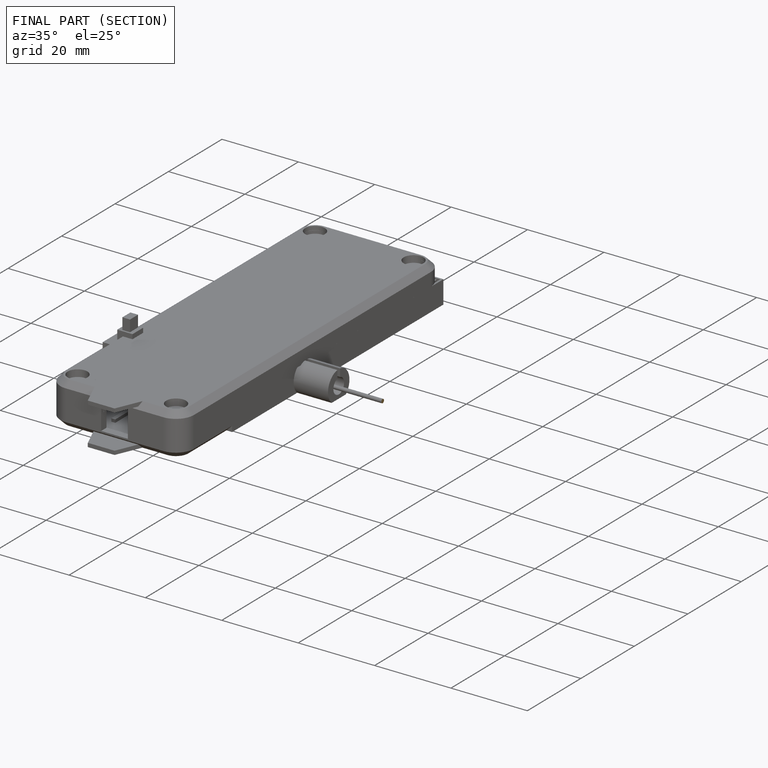
[diagram: finished part — half-section view (interior)]
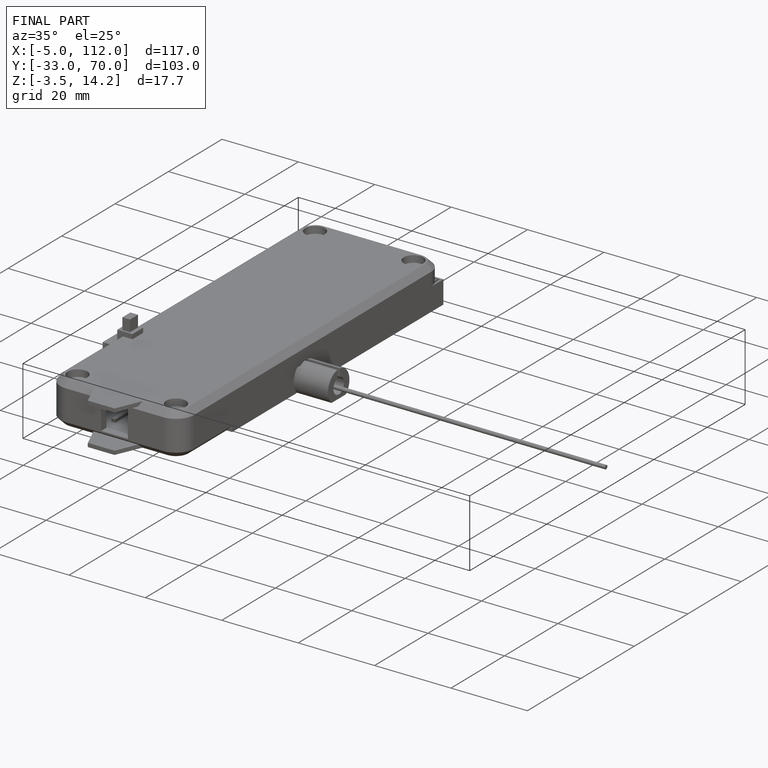
[diagram: finished part — iso view with bounding-box wireframe]
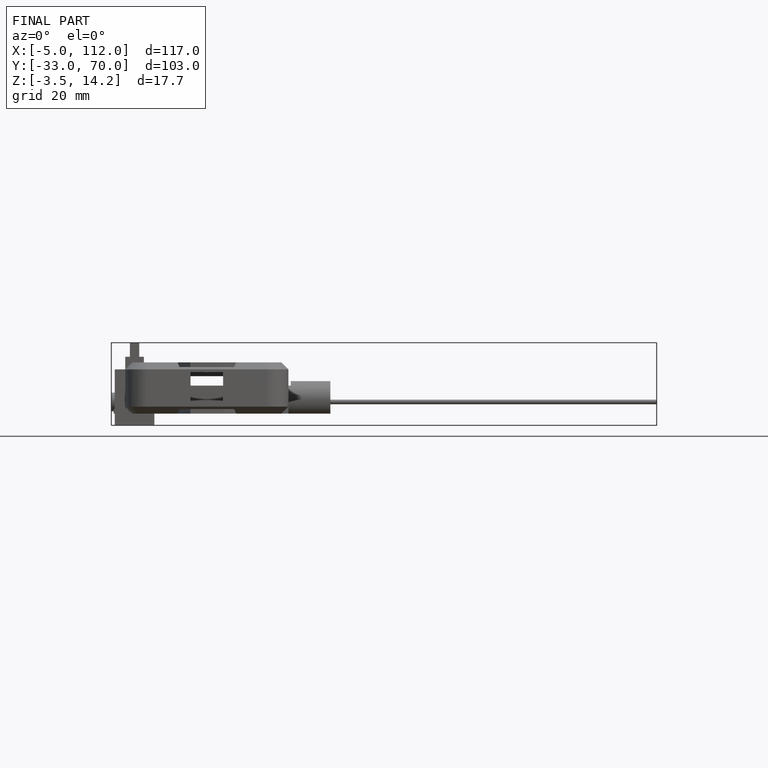
[diagram: finished part — front view with bounding-box wireframe]
